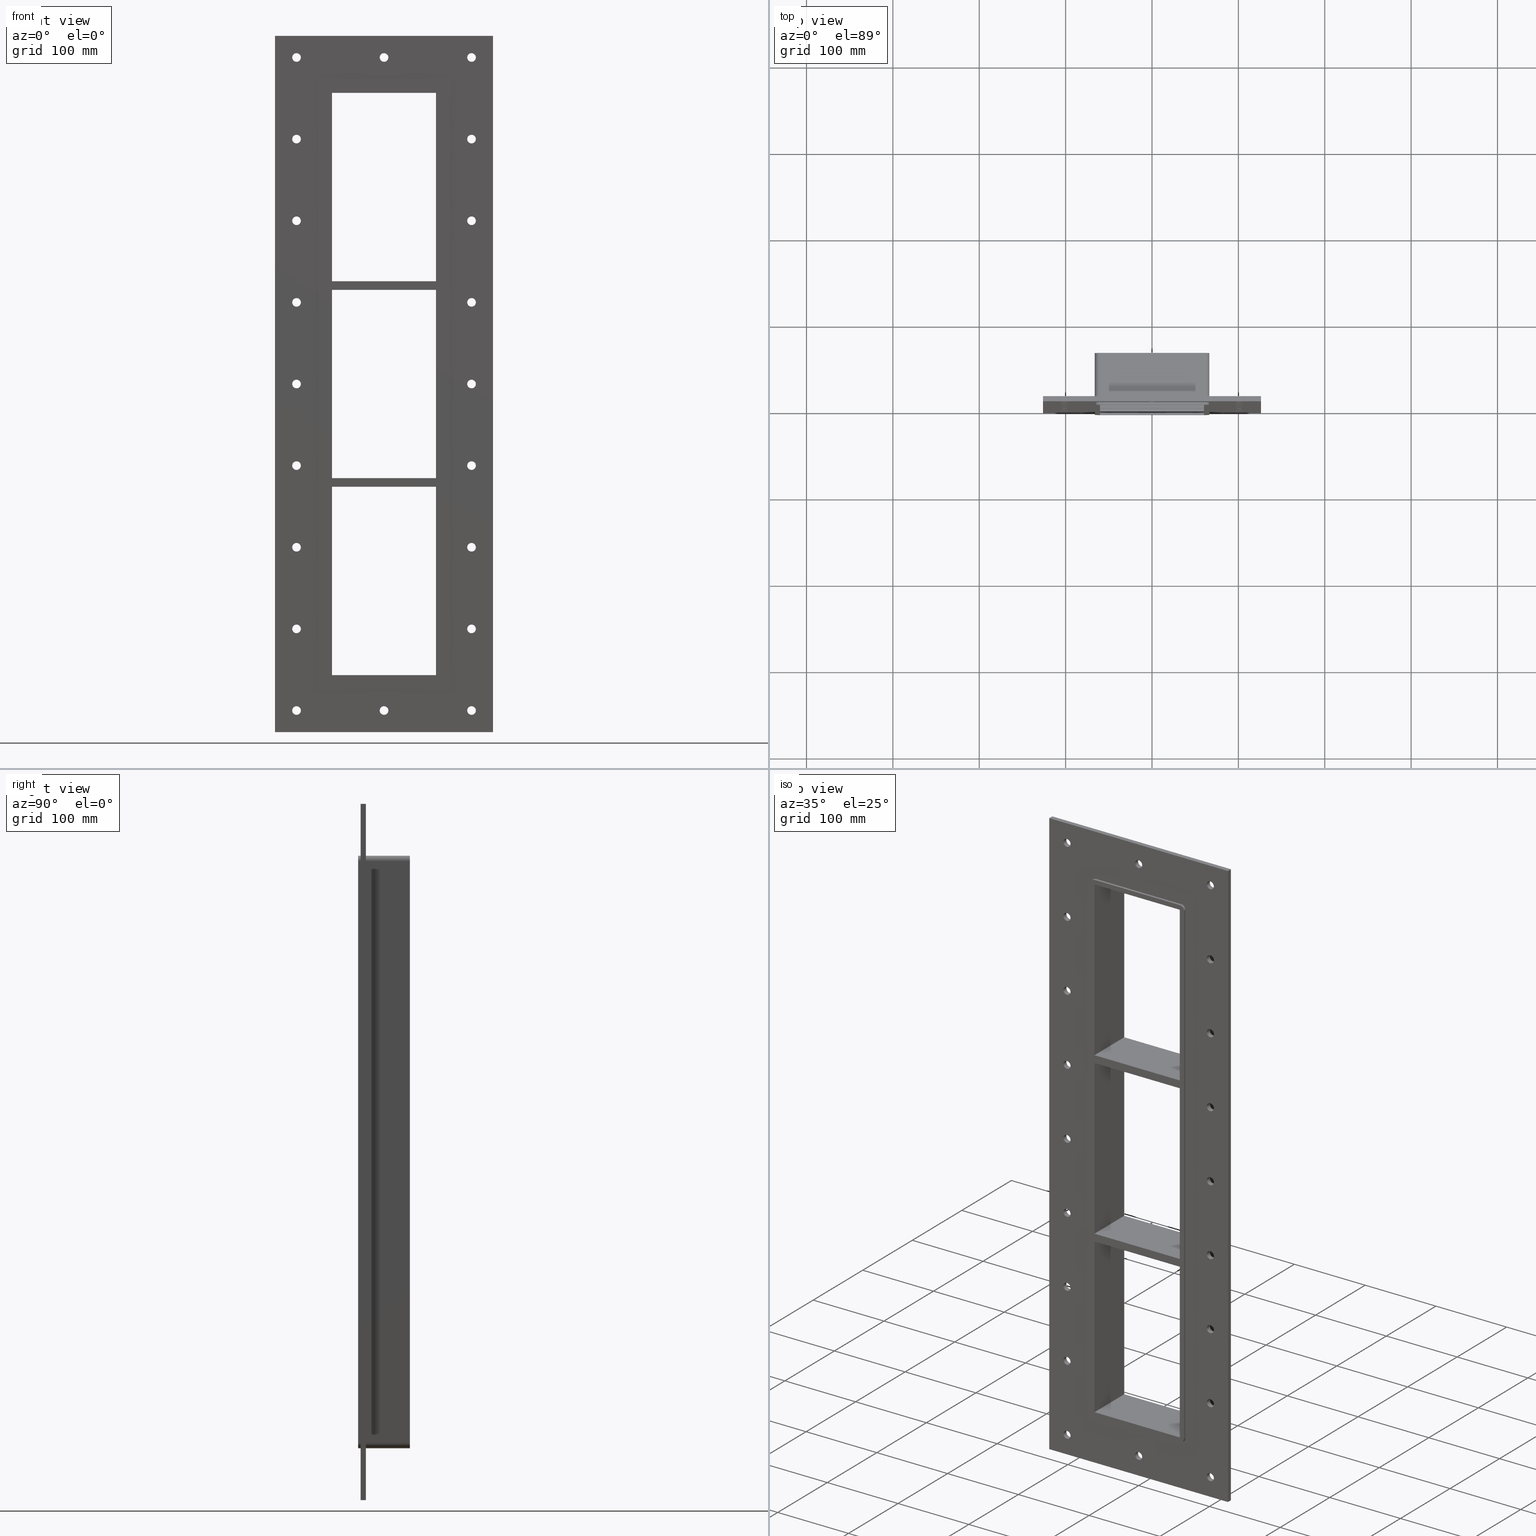
[diagram: canonical four-view strip — front | top / right | iso, engineering-drawing reading convention]
A machine part, canonical four-view strip (front | top / right | iso — engineering-drawing reading convention). The complete STEP part file that produces these views, byte-faithful:
ISO-10303-21;
HEADER;
/****************************************************************
 * Generated by software with PDElib inside                    *
 * PDElib Version v51a, created Wed 11/30/2011                  *
 * ITI Transcendata (http://www.transcendata.com/)              *
 ****************************************************************/
FILE_DESCRIPTION((''),'2;1');
FILE_NAME('N:\\Projects\\Ongoing_Projects\\12403 Transit Designer\\Product-data\\Product Data\\Transit designer Cad Generator\\CreatedFiles\\STEP\\G B EX6+6+6X1.stp','2014-12-01T13:02:52',(''),(''),'Autodesk Inventor 2013','Autodesk Inventor 2013','');
FILE_SCHEMA(('AUTOMOTIVE_DESIGN { 1 0 10303 214 1 1 1 1 }'));
ENDSEC;
DATA;
#5=APPLICATION_CONTEXT('automotive design');
#6=APPLICATION_PROTOCOL_DEFINITION('International Standard','automotive_design',2001,#5);
#7=PRODUCT_CONTEXT('',#5,'mechanical');
#8=PRODUCT('G B Ex','G B Ex',$,(#7));
#9=PRODUCT_RELATED_PRODUCT_CATEGORY('part',$,(#8));
#10=PRODUCT_DEFINITION_FORMATION('',$,#8);
#11=PRODUCT_DEFINITION_CONTEXT('part definition',#5,'design');
#12=PRODUCT_DEFINITION('',$,#10,#11);
#18=(NAMED_UNIT(*)PLANE_ANGLE_UNIT()SI_UNIT($,.RADIAN.));
#19=DIMENSIONAL_EXPONENTS(0.0,0.0,0.0,0.0,0.0,0.0,0.0);
#20=PLANE_ANGLE_MEASURE_WITH_UNIT(PLANE_ANGLE_MEASURE(0.0174532925),#18);
#24=(CONVERSION_BASED_UNIT('DEGREE',#20)NAMED_UNIT(#19)PLANE_ANGLE_UNIT());
#28=(NAMED_UNIT(*)SI_UNIT($,.STERADIAN.)SOLID_ANGLE_UNIT());
#32=(LENGTH_UNIT()NAMED_UNIT(*)SI_UNIT(.MILLI.,.METRE.));
#34=UNCERTAINTY_MEASURE_WITH_UNIT(LENGTH_MEASURE(0.01),#32,'DISTANCE_ACCURACY_VALUE','');
#36=(GEOMETRIC_REPRESENTATION_CONTEXT(3)GLOBAL_UNCERTAINTY_ASSIGNED_CONTEXT((#34))GLOBAL_UNIT_ASSIGNED_CONTEXT((#24,#28,#32))REPRESENTATION_CONTEXT('None','None'));
#37=AXIS2_PLACEMENT_3D('',#38,#39,#40);
#38=CARTESIAN_POINT('',(0.0,0.0,0.0));
#39=DIRECTION('',(0.0,0.0,1.0));
#40=DIRECTION('',(1.0,0.0,0.0));
#41=SHAPE_REPRESENTATION('',(#37),#36);
#42=PRODUCT_DEFINITION_SHAPE('','',#12);
#43=SHAPE_DEFINITION_REPRESENTATION(#42,#41);
#49=(NAMED_UNIT(*)PLANE_ANGLE_UNIT()SI_UNIT($,.RADIAN.));
#50=DIMENSIONAL_EXPONENTS(0.0,0.0,0.0,0.0,0.0,0.0,0.0);
#51=PLANE_ANGLE_MEASURE_WITH_UNIT(PLANE_ANGLE_MEASURE(0.0174532925),#49);
#55=(CONVERSION_BASED_UNIT('DEGREE',#51)NAMED_UNIT(#50)PLANE_ANGLE_UNIT());
#59=(NAMED_UNIT(*)SI_UNIT($,.STERADIAN.)SOLID_ANGLE_UNIT());
#63=(LENGTH_UNIT()NAMED_UNIT(*)SI_UNIT(.MILLI.,.METRE.));
#65=UNCERTAINTY_MEASURE_WITH_UNIT(LENGTH_MEASURE(0.000001),#63,'DISTANCE_ACCURACY_VALUE','');
#67=(GEOMETRIC_REPRESENTATION_CONTEXT(3)GLOBAL_UNCERTAINTY_ASSIGNED_CONTEXT((#65))GLOBAL_UNIT_ASSIGNED_CONTEXT((#55,#59,#63))REPRESENTATION_CONTEXT('','3D'));
#68=CARTESIAN_POINT('',(-101.25000000000006,846.75394891314215,-378.00000000000006));
#69=DIRECTION('',(0.0,-1.0,0.0));
#70=DIRECTION('',(1.0,0.0,0.0));
#71=AXIS2_PLACEMENT_3D('',#68,#69,#70);
#72=CYLINDRICAL_SURFACE('',#71,5.0);
#73=CARTESIAN_POINT('',(-106.25000000000006,5.999999999999943,-378.00000000000006));
#74=VERTEX_POINT('',#73);
#75=CARTESIAN_POINT('',(-101.25000000000006,5.999999999999943,-378.00000000000006));
#76=DIRECTION('',(0.0,-1.0,0.0));
#77=DIRECTION('',(1.0,0.0,0.0));
#78=AXIS2_PLACEMENT_3D('',#75,#76,#77);
#79=CIRCLE('',#78,5.0);
#80=EDGE_CURVE('',#74,#74,#79,.T.);
#81=ORIENTED_EDGE('',*,*,#80,.F.);
#82=EDGE_LOOP('',(#81));
#83=FACE_OUTER_BOUND('',#82,.T.);
#84=CARTESIAN_POINT('',(-96.250000000000057,0.0,-378.00000000000006));
#85=VERTEX_POINT('',#84);
#86=CARTESIAN_POINT('',(-101.25000000000006,0.0,-378.00000000000006));
#87=DIRECTION('',(0.0,1.0,0.0));
#88=DIRECTION('',(1.0,0.0,0.0));
#89=AXIS2_PLACEMENT_3D('',#86,#87,#88);
#90=CIRCLE('',#89,5.0);
#91=EDGE_CURVE('',#85,#85,#90,.T.);
#92=ORIENTED_EDGE('',*,*,#91,.F.);
#93=EDGE_LOOP('',(#92));
#94=FACE_BOUND('',#93,.T.);
#95=ADVANCED_FACE('',(#83,#94),#72,.F.);
#96=CARTESIAN_POINT('',(101.34999999999997,846.75394891314215,-283.5));
#97=DIRECTION('',(0.0,-1.0,0.0));
#98=DIRECTION('',(1.0,0.0,0.0));
#99=AXIS2_PLACEMENT_3D('',#96,#97,#98);
#100=CYLINDRICAL_SURFACE('',#99,5.0);
#101=CARTESIAN_POINT('',(96.349999999999966,5.999999999999943,-283.5));
#102=VERTEX_POINT('',#101);
#103=CARTESIAN_POINT('',(101.34999999999997,5.999999999999943,-283.5));
#104=DIRECTION('',(0.0,-1.0,0.0));
#105=DIRECTION('',(1.0,0.0,0.0));
#106=AXIS2_PLACEMENT_3D('',#103,#104,#105);
#107=CIRCLE('',#106,5.0);
#108=EDGE_CURVE('',#102,#102,#107,.T.);
#109=ORIENTED_EDGE('',*,*,#108,.F.);
#110=EDGE_LOOP('',(#109));
#111=FACE_OUTER_BOUND('',#110,.T.);
#112=CARTESIAN_POINT('',(106.34999999999997,0.0,-283.5));
#113=VERTEX_POINT('',#112);
#114=CARTESIAN_POINT('',(101.34999999999997,0.0,-283.5));
#115=DIRECTION('',(0.0,1.0,0.0));
#116=DIRECTION('',(1.0,0.0,0.0));
#117=AXIS2_PLACEMENT_3D('',#114,#115,#116);
#118=CIRCLE('',#117,5.0);
#119=EDGE_CURVE('',#113,#113,#118,.T.);
#120=ORIENTED_EDGE('',*,*,#119,.F.);
#121=EDGE_LOOP('',(#120));
#122=FACE_BOUND('',#121,.T.);
#123=ADVANCED_FACE('',(#111,#122),#100,.F.);
#124=CARTESIAN_POINT('',(-101.25000000000006,846.75394891314215,-283.5));
#125=DIRECTION('',(0.0,-1.0,0.0));
#126=DIRECTION('',(1.0,0.0,0.0));
#127=AXIS2_PLACEMENT_3D('',#124,#125,#126);
#128=CYLINDRICAL_SURFACE('',#127,5.0);
#129=CARTESIAN_POINT('',(-106.25000000000006,5.999999999999943,-283.5));
#130=VERTEX_POINT('',#129);
#131=CARTESIAN_POINT('',(-101.25000000000006,5.999999999999943,-283.5));
#132=DIRECTION('',(0.0,-1.0,0.0));
#133=DIRECTION('',(1.0,0.0,0.0));
#134=AXIS2_PLACEMENT_3D('',#131,#132,#133);
#135=CIRCLE('',#134,5.0);
#136=EDGE_CURVE('',#130,#130,#135,.T.);
#137=ORIENTED_EDGE('',*,*,#136,.F.);
#138=EDGE_LOOP('',(#137));
#139=FACE_OUTER_BOUND('',#138,.T.);
#140=CARTESIAN_POINT('',(-96.250000000000057,0.0,-283.5));
#141=VERTEX_POINT('',#140);
#142=CARTESIAN_POINT('',(-101.25000000000006,0.0,-283.5));
#143=DIRECTION('',(0.0,1.0,0.0));
#144=DIRECTION('',(1.0,0.0,0.0));
#145=AXIS2_PLACEMENT_3D('',#142,#143,#144);
#146=CIRCLE('',#145,5.0);
#147=EDGE_CURVE('',#141,#141,#146,.T.);
#148=ORIENTED_EDGE('',*,*,#147,.F.);
#149=EDGE_LOOP('',(#148));
#150=FACE_BOUND('',#149,.T.);
#151=ADVANCED_FACE('',(#139,#150),#128,.F.);
#152=CARTESIAN_POINT('',(101.34999999999997,846.75394891314215,-189.0));
#153=DIRECTION('',(0.0,-1.0,0.0));
#154=DIRECTION('',(1.0,0.0,0.0));
#155=AXIS2_PLACEMENT_3D('',#152,#153,#154);
#156=CYLINDRICAL_SURFACE('',#155,5.0);
#157=CARTESIAN_POINT('',(96.349999999999966,5.999999999999943,-189.0));
#158=VERTEX_POINT('',#157);
#159=CARTESIAN_POINT('',(101.34999999999997,5.999999999999943,-189.0));
#160=DIRECTION('',(0.0,-1.0,0.0));
#161=DIRECTION('',(1.0,0.0,0.0));
#162=AXIS2_PLACEMENT_3D('',#159,#160,#161);
#163=CIRCLE('',#162,5.0);
#164=EDGE_CURVE('',#158,#158,#163,.T.);
#165=ORIENTED_EDGE('',*,*,#164,.F.);
#166=EDGE_LOOP('',(#165));
#167=FACE_OUTER_BOUND('',#166,.T.);
#168=CARTESIAN_POINT('',(106.34999999999997,0.0,-189.0));
#169=VERTEX_POINT('',#168);
#170=CARTESIAN_POINT('',(101.34999999999997,0.0,-189.0));
#171=DIRECTION('',(0.0,1.0,0.0));
#172=DIRECTION('',(1.0,0.0,0.0));
#173=AXIS2_PLACEMENT_3D('',#170,#171,#172);
#174=CIRCLE('',#173,5.0);
#175=EDGE_CURVE('',#169,#169,#174,.T.);
#176=ORIENTED_EDGE('',*,*,#175,.F.);
#177=EDGE_LOOP('',(#176));
#178=FACE_BOUND('',#177,.T.);
#179=ADVANCED_FACE('',(#167,#178),#156,.F.);
#180=CARTESIAN_POINT('',(-101.25000000000006,846.75394891314215,-189.0));
#181=DIRECTION('',(0.0,-1.0,0.0));
#182=DIRECTION('',(1.0,0.0,0.0));
#183=AXIS2_PLACEMENT_3D('',#180,#181,#182);
#184=CYLINDRICAL_SURFACE('',#183,5.0);
#185=CARTESIAN_POINT('',(-106.25000000000006,5.999999999999943,-189.0));
#186=VERTEX_POINT('',#185);
#187=CARTESIAN_POINT('',(-101.25000000000006,5.999999999999943,-189.0));
#188=DIRECTION('',(0.0,-1.0,0.0));
#189=DIRECTION('',(1.0,0.0,0.0));
#190=AXIS2_PLACEMENT_3D('',#187,#188,#189);
#191=CIRCLE('',#190,5.0);
#192=EDGE_CURVE('',#186,#186,#191,.T.);
#193=ORIENTED_EDGE('',*,*,#192,.F.);
#194=EDGE_LOOP('',(#193));
#195=FACE_OUTER_BOUND('',#194,.T.);
#196=CARTESIAN_POINT('',(-96.250000000000057,0.0,-189.0));
#197=VERTEX_POINT('',#196);
#198=CARTESIAN_POINT('',(-101.25000000000006,0.0,-189.0));
#199=DIRECTION('',(0.0,1.0,0.0));
#200=DIRECTION('',(1.0,0.0,0.0));
#201=AXIS2_PLACEMENT_3D('',#198,#199,#200);
#202=CIRCLE('',#201,5.0);
#203=EDGE_CURVE('',#197,#197,#202,.T.);
#204=ORIENTED_EDGE('',*,*,#203,.F.);
#205=EDGE_LOOP('',(#204));
#206=FACE_BOUND('',#205,.T.);
#207=ADVANCED_FACE('',(#195,#206),#184,.F.);
#208=CARTESIAN_POINT('',(101.34999999999997,846.75394891314215,-94.500000000000014));
#209=DIRECTION('',(0.0,-1.0,0.0));
#210=DIRECTION('',(1.0,0.0,0.0));
#211=AXIS2_PLACEMENT_3D('',#208,#209,#210);
#212=CYLINDRICAL_SURFACE('',#211,5.0);
#213=CARTESIAN_POINT('',(96.349999999999966,5.999999999999943,-94.500000000000014));
#214=VERTEX_POINT('',#213);
#215=CARTESIAN_POINT('',(101.34999999999997,5.999999999999943,-94.500000000000014));
#216=DIRECTION('',(0.0,-1.0,0.0));
#217=DIRECTION('',(1.0,0.0,0.0));
#218=AXIS2_PLACEMENT_3D('',#215,#216,#217);
#219=CIRCLE('',#218,5.0);
#220=EDGE_CURVE('',#214,#214,#219,.T.);
#221=ORIENTED_EDGE('',*,*,#220,.F.);
#222=EDGE_LOOP('',(#221));
#223=FACE_OUTER_BOUND('',#222,.T.);
#224=CARTESIAN_POINT('',(106.34999999999997,0.0,-94.500000000000014));
#225=VERTEX_POINT('',#224);
#226=CARTESIAN_POINT('',(101.34999999999997,0.0,-94.500000000000014));
#227=DIRECTION('',(0.0,1.0,0.0));
#228=DIRECTION('',(1.0,0.0,0.0));
#229=AXIS2_PLACEMENT_3D('',#226,#227,#228);
#230=CIRCLE('',#229,5.0);
#231=EDGE_CURVE('',#225,#225,#230,.T.);
#232=ORIENTED_EDGE('',*,*,#231,.F.);
#233=EDGE_LOOP('',(#232));
#234=FACE_BOUND('',#233,.T.);
#235=ADVANCED_FACE('',(#223,#234),#212,.F.);
#236=CARTESIAN_POINT('',(-101.25000000000006,846.75394891314215,-94.500000000000014));
#237=DIRECTION('',(0.0,-1.0,0.0));
#238=DIRECTION('',(1.0,0.0,0.0));
#239=AXIS2_PLACEMENT_3D('',#236,#237,#238);
#240=CYLINDRICAL_SURFACE('',#239,5.0);
#241=CARTESIAN_POINT('',(-106.25000000000006,5.999999999999943,-94.500000000000014));
#242=VERTEX_POINT('',#241);
#243=CARTESIAN_POINT('',(-101.25000000000006,5.999999999999943,-94.500000000000014));
#244=DIRECTION('',(0.0,-1.0,0.0));
#245=DIRECTION('',(1.0,0.0,0.0));
#246=AXIS2_PLACEMENT_3D('',#243,#244,#245);
#247=CIRCLE('',#246,5.0);
#248=EDGE_CURVE('',#242,#242,#247,.T.);
#249=ORIENTED_EDGE('',*,*,#248,.F.);
#250=EDGE_LOOP('',(#249));
#251=FACE_OUTER_BOUND('',#250,.T.);
#252=CARTESIAN_POINT('',(-96.250000000000057,0.0,-94.500000000000014));
#253=VERTEX_POINT('',#252);
#254=CARTESIAN_POINT('',(-101.25000000000006,0.0,-94.500000000000014));
#255=DIRECTION('',(0.0,1.0,0.0));
#256=DIRECTION('',(1.0,0.0,0.0));
#257=AXIS2_PLACEMENT_3D('',#254,#255,#256);
#258=CIRCLE('',#257,5.0);
#259=EDGE_CURVE('',#253,#253,#258,.T.);
#260=ORIENTED_EDGE('',*,*,#259,.F.);
#261=EDGE_LOOP('',(#260));
#262=FACE_BOUND('',#261,.T.);
#263=ADVANCED_FACE('',(#251,#262),#240,.F.);
#264=CARTESIAN_POINT('',(101.34999999999997,846.75394891314215,1.776357E-014));
#265=DIRECTION('',(0.0,-1.0,0.0));
#266=DIRECTION('',(1.0,0.0,0.0));
#267=AXIS2_PLACEMENT_3D('',#264,#265,#266);
#268=CYLINDRICAL_SURFACE('',#267,5.0);
#269=CARTESIAN_POINT('',(96.349999999999966,5.999999999999943,1.776357E-014));
#270=VERTEX_POINT('',#269);
#271=CARTESIAN_POINT('',(101.34999999999997,5.999999999999943,1.776357E-014));
#272=DIRECTION('',(0.0,-1.0,0.0));
#273=DIRECTION('',(1.0,0.0,0.0));
#274=AXIS2_PLACEMENT_3D('',#271,#272,#273);
#275=CIRCLE('',#274,5.0);
#276=EDGE_CURVE('',#270,#270,#275,.T.);
#277=ORIENTED_EDGE('',*,*,#276,.F.);
#278=EDGE_LOOP('',(#277));
#279=FACE_OUTER_BOUND('',#278,.T.);
#280=CARTESIAN_POINT('',(106.34999999999997,0.0,1.776357E-014));
#281=VERTEX_POINT('',#280);
#282=CARTESIAN_POINT('',(101.34999999999997,0.0,1.776357E-014));
#283=DIRECTION('',(0.0,1.0,0.0));
#284=DIRECTION('',(1.0,0.0,0.0));
#285=AXIS2_PLACEMENT_3D('',#282,#283,#284);
#286=CIRCLE('',#285,5.0);
#287=EDGE_CURVE('',#281,#281,#286,.T.);
#288=ORIENTED_EDGE('',*,*,#287,.F.);
#289=EDGE_LOOP('',(#288));
#290=FACE_BOUND('',#289,.T.);
#291=ADVANCED_FACE('',(#279,#290),#268,.F.);
#292=CARTESIAN_POINT('',(-101.25000000000006,846.75394891314215,1.776357E-014));
#293=DIRECTION('',(0.0,-1.0,0.0));
#294=DIRECTION('',(1.0,0.0,0.0));
#295=AXIS2_PLACEMENT_3D('',#292,#293,#294);
#296=CYLINDRICAL_SURFACE('',#295,5.0);
#297=CARTESIAN_POINT('',(-106.25000000000006,5.999999999999943,1.776357E-014));
#298=VERTEX_POINT('',#297);
#299=CARTESIAN_POINT('',(-101.25000000000006,5.999999999999943,1.776357E-014));
#300=DIRECTION('',(0.0,-1.0,0.0));
#301=DIRECTION('',(1.0,0.0,0.0));
#302=AXIS2_PLACEMENT_3D('',#299,#300,#301);
#303=CIRCLE('',#302,5.0);
#304=EDGE_CURVE('',#298,#298,#303,.T.);
#305=ORIENTED_EDGE('',*,*,#304,.F.);
#306=EDGE_LOOP('',(#305));
#307=FACE_OUTER_BOUND('',#306,.T.);
#308=CARTESIAN_POINT('',(-96.250000000000057,0.0,1.776357E-014));
#309=VERTEX_POINT('',#308);
#310=CARTESIAN_POINT('',(-101.25000000000006,0.0,1.776357E-014));
#311=DIRECTION('',(0.0,1.0,0.0));
#312=DIRECTION('',(1.0,0.0,0.0));
#313=AXIS2_PLACEMENT_3D('',#310,#311,#312);
#314=CIRCLE('',#313,5.0);
#315=EDGE_CURVE('',#309,#309,#314,.T.);
#316=ORIENTED_EDGE('',*,*,#315,.F.);
#317=EDGE_LOOP('',(#316));
#318=FACE_BOUND('',#317,.T.);
#319=ADVANCED_FACE('',(#307,#318),#296,.F.);
#320=CARTESIAN_POINT('',(101.34999999999997,846.75394891314215,94.500000000000043));
#321=DIRECTION('',(0.0,-1.0,0.0));
#322=DIRECTION('',(1.0,0.0,0.0));
#323=AXIS2_PLACEMENT_3D('',#320,#321,#322);
#324=CYLINDRICAL_SURFACE('',#323,5.0);
#325=CARTESIAN_POINT('',(96.349999999999966,5.999999999999943,94.500000000000043));
#326=VERTEX_POINT('',#325);
#327=CARTESIAN_POINT('',(101.34999999999997,5.999999999999943,94.500000000000043));
#328=DIRECTION('',(0.0,-1.0,0.0));
#329=DIRECTION('',(1.0,0.0,0.0));
#330=AXIS2_PLACEMENT_3D('',#327,#328,#329);
#331=CIRCLE('',#330,5.0);
#332=EDGE_CURVE('',#326,#326,#331,.T.);
#333=ORIENTED_EDGE('',*,*,#332,.F.);
#334=EDGE_LOOP('',(#333));
#335=FACE_OUTER_BOUND('',#334,.T.);
#336=CARTESIAN_POINT('',(106.34999999999997,0.0,94.500000000000043));
#337=VERTEX_POINT('',#336);
#338=CARTESIAN_POINT('',(101.34999999999997,0.0,94.500000000000043));
#339=DIRECTION('',(0.0,1.0,0.0));
#340=DIRECTION('',(1.0,0.0,0.0));
#341=AXIS2_PLACEMENT_3D('',#338,#339,#340);
#342=CIRCLE('',#341,5.0);
#343=EDGE_CURVE('',#337,#337,#342,.T.);
#344=ORIENTED_EDGE('',*,*,#343,.F.);
#345=EDGE_LOOP('',(#344));
#346=FACE_BOUND('',#345,.T.);
#347=ADVANCED_FACE('',(#335,#346),#324,.F.);
#348=CARTESIAN_POINT('',(-101.25000000000006,846.75394891314215,94.500000000000043));
#349=DIRECTION('',(0.0,-1.0,0.0));
#350=DIRECTION('',(1.0,0.0,0.0));
#351=AXIS2_PLACEMENT_3D('',#348,#349,#350);
#352=CYLINDRICAL_SURFACE('',#351,5.0);
#353=CARTESIAN_POINT('',(-106.25000000000006,5.999999999999943,94.500000000000043));
#354=VERTEX_POINT('',#353);
#355=CARTESIAN_POINT('',(-101.25000000000006,5.999999999999943,94.500000000000043));
#356=DIRECTION('',(0.0,-1.0,0.0));
#357=DIRECTION('',(1.0,0.0,0.0));
#358=AXIS2_PLACEMENT_3D('',#355,#356,#357);
#359=CIRCLE('',#358,5.0);
#360=EDGE_CURVE('',#354,#354,#359,.T.);
#361=ORIENTED_EDGE('',*,*,#360,.F.);
#362=EDGE_LOOP('',(#361));
#363=FACE_OUTER_BOUND('',#362,.T.);
#364=CARTESIAN_POINT('',(-96.250000000000057,0.0,94.500000000000043));
#365=VERTEX_POINT('',#364);
#366=CARTESIAN_POINT('',(-101.25000000000006,0.0,94.500000000000043));
#367=DIRECTION('',(0.0,1.0,0.0));
#368=DIRECTION('',(1.0,0.0,0.0));
#369=AXIS2_PLACEMENT_3D('',#366,#367,#368);
#370=CIRCLE('',#369,5.0);
#371=EDGE_CURVE('',#365,#365,#370,.T.);
#372=ORIENTED_EDGE('',*,*,#371,.F.);
#373=EDGE_LOOP('',(#372));
#374=FACE_BOUND('',#373,.T.);
#375=ADVANCED_FACE('',(#363,#374),#352,.F.);
#376=CARTESIAN_POINT('',(101.34999999999997,846.75394891314215,189.0));
#377=DIRECTION('',(0.0,-1.0,0.0));
#378=DIRECTION('',(1.0,0.0,0.0));
#379=AXIS2_PLACEMENT_3D('',#376,#377,#378);
#380=CYLINDRICAL_SURFACE('',#379,5.0);
#381=CARTESIAN_POINT('',(96.349999999999966,5.999999999999943,189.0));
#382=VERTEX_POINT('',#381);
#383=CARTESIAN_POINT('',(101.34999999999997,5.999999999999943,189.0));
#384=DIRECTION('',(0.0,-1.0,0.0));
#385=DIRECTION('',(1.0,0.0,0.0));
#386=AXIS2_PLACEMENT_3D('',#383,#384,#385);
#387=CIRCLE('',#386,5.0);
#388=EDGE_CURVE('',#382,#382,#387,.T.);
#389=ORIENTED_EDGE('',*,*,#388,.F.);
#390=EDGE_LOOP('',(#389));
#391=FACE_OUTER_BOUND('',#390,.T.);
#392=CARTESIAN_POINT('',(106.34999999999997,0.0,189.0));
#393=VERTEX_POINT('',#392);
#394=CARTESIAN_POINT('',(101.34999999999997,0.0,189.0));
#395=DIRECTION('',(0.0,1.0,0.0));
#396=DIRECTION('',(1.0,0.0,0.0));
#397=AXIS2_PLACEMENT_3D('',#394,#395,#396);
#398=CIRCLE('',#397,5.0);
#399=EDGE_CURVE('',#393,#393,#398,.T.);
#400=ORIENTED_EDGE('',*,*,#399,.F.);
#401=EDGE_LOOP('',(#400));
#402=FACE_BOUND('',#401,.T.);
#403=ADVANCED_FACE('',(#391,#402),#380,.F.);
#404=CARTESIAN_POINT('',(-101.25000000000006,846.75394891314215,189.0));
#405=DIRECTION('',(0.0,-1.0,0.0));
#406=DIRECTION('',(1.0,0.0,0.0));
#407=AXIS2_PLACEMENT_3D('',#404,#405,#406);
#408=CYLINDRICAL_SURFACE('',#407,5.0);
#409=CARTESIAN_POINT('',(-106.25000000000006,5.999999999999943,189.0));
#410=VERTEX_POINT('',#409);
#411=CARTESIAN_POINT('',(-101.25000000000006,5.999999999999943,189.0));
#412=DIRECTION('',(0.0,-1.0,0.0));
#413=DIRECTION('',(1.0,0.0,0.0));
#414=AXIS2_PLACEMENT_3D('',#411,#412,#413);
#415=CIRCLE('',#414,5.0);
#416=EDGE_CURVE('',#410,#410,#415,.T.);
#417=ORIENTED_EDGE('',*,*,#416,.F.);
#418=EDGE_LOOP('',(#417));
#419=FACE_OUTER_BOUND('',#418,.T.);
#420=CARTESIAN_POINT('',(-96.250000000000057,0.0,189.0));
#421=VERTEX_POINT('',#420);
#422=CARTESIAN_POINT('',(-101.25000000000006,0.0,189.0));
#423=DIRECTION('',(0.0,1.0,0.0));
#424=DIRECTION('',(1.0,0.0,0.0));
#425=AXIS2_PLACEMENT_3D('',#422,#423,#424);
#426=CIRCLE('',#425,5.0);
#427=EDGE_CURVE('',#421,#421,#426,.T.);
#428=ORIENTED_EDGE('',*,*,#427,.F.);
#429=EDGE_LOOP('',(#428));
#430=FACE_BOUND('',#429,.T.);
#431=ADVANCED_FACE('',(#419,#430),#408,.F.);
#432=CARTESIAN_POINT('',(101.34999999999997,846.75394891314215,283.5));
#433=DIRECTION('',(0.0,-1.0,0.0));
#434=DIRECTION('',(1.0,0.0,0.0));
#435=AXIS2_PLACEMENT_3D('',#432,#433,#434);
#436=CYLINDRICAL_SURFACE('',#435,5.0);
#437=CARTESIAN_POINT('',(96.349999999999966,5.999999999999943,283.5));
#438=VERTEX_POINT('',#437);
#439=CARTESIAN_POINT('',(101.34999999999997,5.999999999999943,283.5));
#440=DIRECTION('',(0.0,-1.0,0.0));
#441=DIRECTION('',(1.0,0.0,0.0));
#442=AXIS2_PLACEMENT_3D('',#439,#440,#441);
#443=CIRCLE('',#442,5.0);
#444=EDGE_CURVE('',#438,#438,#443,.T.);
#445=ORIENTED_EDGE('',*,*,#444,.F.);
#446=EDGE_LOOP('',(#445));
#447=FACE_OUTER_BOUND('',#446,.T.);
#448=CARTESIAN_POINT('',(106.34999999999997,0.0,283.5));
#449=VERTEX_POINT('',#448);
#450=CARTESIAN_POINT('',(101.34999999999997,0.0,283.5));
#451=DIRECTION('',(0.0,1.0,0.0));
#452=DIRECTION('',(1.0,0.0,0.0));
#453=AXIS2_PLACEMENT_3D('',#450,#451,#452);
#454=CIRCLE('',#453,5.0);
#455=EDGE_CURVE('',#449,#449,#454,.T.);
#456=ORIENTED_EDGE('',*,*,#455,.F.);
#457=EDGE_LOOP('',(#456));
#458=FACE_BOUND('',#457,.T.);
#459=ADVANCED_FACE('',(#447,#458),#436,.F.);
#460=CARTESIAN_POINT('',(-101.25000000000006,846.75394891314215,283.5));
#461=DIRECTION('',(0.0,-1.0,0.0));
#462=DIRECTION('',(1.0,0.0,0.0));
#463=AXIS2_PLACEMENT_3D('',#460,#461,#462);
#464=CYLINDRICAL_SURFACE('',#463,5.0);
#465=CARTESIAN_POINT('',(-106.25000000000006,5.999999999999943,283.5));
#466=VERTEX_POINT('',#465);
#467=CARTESIAN_POINT('',(-101.25000000000006,5.999999999999943,283.5));
#468=DIRECTION('',(0.0,-1.0,0.0));
#469=DIRECTION('',(1.0,0.0,0.0));
#470=AXIS2_PLACEMENT_3D('',#467,#468,#469);
#471=CIRCLE('',#470,5.0);
#472=EDGE_CURVE('',#466,#466,#471,.T.);
#473=ORIENTED_EDGE('',*,*,#472,.F.);
#474=EDGE_LOOP('',(#473));
#475=FACE_OUTER_BOUND('',#474,.T.);
#476=CARTESIAN_POINT('',(-96.250000000000057,0.0,283.5));
#477=VERTEX_POINT('',#476);
#478=CARTESIAN_POINT('',(-101.25000000000006,0.0,283.5));
#479=DIRECTION('',(0.0,1.0,0.0));
#480=DIRECTION('',(1.0,0.0,0.0));
#481=AXIS2_PLACEMENT_3D('',#478,#479,#480);
#482=CIRCLE('',#481,5.0);
#483=EDGE_CURVE('',#477,#477,#482,.T.);
#484=ORIENTED_EDGE('',*,*,#483,.F.);
#485=EDGE_LOOP('',(#484));
#486=FACE_BOUND('',#485,.T.);
#487=ADVANCED_FACE('',(#475,#486),#464,.F.);
#488=CARTESIAN_POINT('',(0.049999999999955,846.75394891314215,378.00000000000006));
#489=DIRECTION('',(0.0,-1.0,0.0));
#490=DIRECTION('',(1.0,0.0,0.0));
#491=AXIS2_PLACEMENT_3D('',#488,#489,#490);
#492=CYLINDRICAL_SURFACE('',#491,5.0);
#493=CARTESIAN_POINT('',(-4.950000000000046,5.999999999999943,378.00000000000006));
#494=VERTEX_POINT('',#493);
#495=CARTESIAN_POINT('',(0.049999999999955,5.999999999999943,378.00000000000006));
#496=DIRECTION('',(0.0,-1.0,0.0));
#497=DIRECTION('',(1.0,0.0,0.0));
#498=AXIS2_PLACEMENT_3D('',#495,#496,#497);
#499=CIRCLE('',#498,5.0);
#500=EDGE_CURVE('',#494,#494,#499,.T.);
#501=ORIENTED_EDGE('',*,*,#500,.F.);
#502=EDGE_LOOP('',(#501));
#503=FACE_OUTER_BOUND('',#502,.T.);
#504=CARTESIAN_POINT('',(5.049999999999955,0.0,378.00000000000006));
#505=VERTEX_POINT('',#504);
#506=CARTESIAN_POINT('',(0.049999999999955,0.0,378.00000000000006));
#507=DIRECTION('',(0.0,1.0,0.0));
#508=DIRECTION('',(1.0,0.0,0.0));
#509=AXIS2_PLACEMENT_3D('',#506,#507,#508);
#510=CIRCLE('',#509,5.0);
#511=EDGE_CURVE('',#505,#505,#510,.T.);
#512=ORIENTED_EDGE('',*,*,#511,.F.);
#513=EDGE_LOOP('',(#512));
#514=FACE_BOUND('',#513,.T.);
#515=ADVANCED_FACE('',(#503,#514),#492,.F.);
#516=CARTESIAN_POINT('',(0.049999999999955,846.75394891314215,-378.00000000000006));
#517=DIRECTION('',(0.0,-1.0,0.0));
#518=DIRECTION('',(1.0,0.0,0.0));
#519=AXIS2_PLACEMENT_3D('',#516,#517,#518);
#520=CYLINDRICAL_SURFACE('',#519,5.0);
#521=CARTESIAN_POINT('',(-4.950000000000046,5.999999999999943,-378.00000000000006));
#522=VERTEX_POINT('',#521);
#523=CARTESIAN_POINT('',(0.049999999999955,5.999999999999943,-378.00000000000006));
#524=DIRECTION('',(0.0,-1.0,0.0));
#525=DIRECTION('',(1.0,0.0,0.0));
#526=AXIS2_PLACEMENT_3D('',#523,#524,#525);
#527=CIRCLE('',#526,5.0);
#528=EDGE_CURVE('',#522,#522,#527,.T.);
#529=ORIENTED_EDGE('',*,*,#528,.F.);
#530=EDGE_LOOP('',(#529));
#531=FACE_OUTER_BOUND('',#530,.T.);
#532=CARTESIAN_POINT('',(5.049999999999955,0.0,-378.00000000000006));
#533=VERTEX_POINT('',#532);
#534=CARTESIAN_POINT('',(0.049999999999955,0.0,-378.00000000000006));
#535=DIRECTION('',(0.0,1.0,0.0));
#536=DIRECTION('',(1.0,0.0,0.0));
#537=AXIS2_PLACEMENT_3D('',#534,#535,#536);
#538=CIRCLE('',#537,5.0);
#539=EDGE_CURVE('',#533,#533,#538,.T.);
#540=ORIENTED_EDGE('',*,*,#539,.F.);
#541=EDGE_LOOP('',(#540));
#542=FACE_BOUND('',#541,.T.);
#543=ADVANCED_FACE('',(#531,#542),#520,.F.);
#544=CARTESIAN_POINT('',(101.34999999999997,846.75394891314215,-378.00000000000006));
#545=DIRECTION('',(0.0,-1.0,0.0));
#546=DIRECTION('',(1.0,0.0,0.0));
#547=AXIS2_PLACEMENT_3D('',#544,#545,#546);
#548=CYLINDRICAL_SURFACE('',#547,5.0);
#549=CARTESIAN_POINT('',(96.349999999999966,5.999999999999943,-378.00000000000006));
#550=VERTEX_POINT('',#549);
#551=CARTESIAN_POINT('',(101.34999999999997,5.999999999999943,-378.00000000000006));
#552=DIRECTION('',(0.0,-1.0,0.0));
#553=DIRECTION('',(1.0,0.0,0.0));
#554=AXIS2_PLACEMENT_3D('',#551,#552,#553);
#555=CIRCLE('',#554,5.0);
#556=EDGE_CURVE('',#550,#550,#555,.T.);
#557=ORIENTED_EDGE('',*,*,#556,.F.);
#558=EDGE_LOOP('',(#557));
#559=FACE_OUTER_BOUND('',#558,.T.);
#560=CARTESIAN_POINT('',(106.34999999999997,0.0,-378.00000000000006));
#561=VERTEX_POINT('',#560);
#562=CARTESIAN_POINT('',(101.34999999999997,0.0,-378.00000000000006));
#563=DIRECTION('',(0.0,1.0,0.0));
#564=DIRECTION('',(1.0,0.0,0.0));
#565=AXIS2_PLACEMENT_3D('',#562,#563,#564);
#566=CIRCLE('',#565,5.0);
#567=EDGE_CURVE('',#561,#561,#566,.T.);
#568=ORIENTED_EDGE('',*,*,#567,.F.);
#569=EDGE_LOOP('',(#568));
#570=FACE_BOUND('',#569,.T.);
#571=ADVANCED_FACE('',(#559,#570),#548,.F.);
#572=CARTESIAN_POINT('',(-101.25000000000006,846.75394891314215,378.00000000000006));
#573=DIRECTION('',(0.0,-1.0,0.0));
#574=DIRECTION('',(1.0,0.0,0.0));
#575=AXIS2_PLACEMENT_3D('',#572,#573,#574);
#576=CYLINDRICAL_SURFACE('',#575,5.0);
#577=CARTESIAN_POINT('',(-106.25000000000006,5.999999999999943,378.00000000000006));
#578=VERTEX_POINT('',#577);
#579=CARTESIAN_POINT('',(-101.25000000000006,5.999999999999943,378.00000000000006));
#580=DIRECTION('',(0.0,-1.0,0.0));
#581=DIRECTION('',(1.0,0.0,0.0));
#582=AXIS2_PLACEMENT_3D('',#579,#580,#581);
#583=CIRCLE('',#582,5.0);
#584=EDGE_CURVE('',#578,#578,#583,.T.);
#585=ORIENTED_EDGE('',*,*,#584,.F.);
#586=EDGE_LOOP('',(#585));
#587=FACE_OUTER_BOUND('',#586,.T.);
#588=CARTESIAN_POINT('',(-96.250000000000057,0.0,378.00000000000006));
#589=VERTEX_POINT('',#588);
#590=CARTESIAN_POINT('',(-101.25000000000006,0.0,378.00000000000006));
#591=DIRECTION('',(0.0,1.0,0.0));
#592=DIRECTION('',(1.0,0.0,0.0));
#593=AXIS2_PLACEMENT_3D('',#590,#591,#592);
#594=CIRCLE('',#593,5.0);
#595=EDGE_CURVE('',#589,#589,#594,.T.);
#596=ORIENTED_EDGE('',*,*,#595,.F.);
#597=EDGE_LOOP('',(#596));
#598=FACE_BOUND('',#597,.T.);
#599=ADVANCED_FACE('',(#587,#598),#576,.F.);
#600=CARTESIAN_POINT('',(101.34999999999997,846.75394891314215,378.00000000000006));
#601=DIRECTION('',(0.0,-1.0,0.0));
#602=DIRECTION('',(1.0,0.0,0.0));
#603=AXIS2_PLACEMENT_3D('',#600,#601,#602);
#604=CYLINDRICAL_SURFACE('',#603,5.0);
#605=CARTESIAN_POINT('',(96.349999999999966,5.999999999999943,378.00000000000006));
#606=VERTEX_POINT('',#605);
#607=CARTESIAN_POINT('',(101.34999999999997,5.999999999999943,378.00000000000006));
#608=DIRECTION('',(0.0,-1.0,0.0));
#609=DIRECTION('',(1.0,0.0,0.0));
#610=AXIS2_PLACEMENT_3D('',#607,#608,#609);
#611=CIRCLE('',#610,5.0);
#612=EDGE_CURVE('',#606,#606,#611,.T.);
#613=ORIENTED_EDGE('',*,*,#612,.F.);
#614=EDGE_LOOP('',(#613));
#615=FACE_OUTER_BOUND('',#614,.T.);
#616=CARTESIAN_POINT('',(106.34999999999997,0.0,378.00000000000006));
#617=VERTEX_POINT('',#616);
#618=CARTESIAN_POINT('',(101.34999999999997,0.0,378.00000000000006));
#619=DIRECTION('',(0.0,1.0,0.0));
#620=DIRECTION('',(1.0,0.0,0.0));
#621=AXIS2_PLACEMENT_3D('',#618,#619,#620);
#622=CIRCLE('',#621,5.0);
#623=EDGE_CURVE('',#617,#617,#622,.T.);
#624=ORIENTED_EDGE('',*,*,#623,.F.);
#625=EDGE_LOOP('',(#624));
#626=FACE_BOUND('',#625,.T.);
#627=ADVANCED_FACE('',(#615,#626),#604,.F.);
#628=CARTESIAN_POINT('',(60.249999999996362,-3.0,108.99999999998904));
#629=DIRECTION('',(0.0,0.0,-1.0));
#630=DIRECTION('',(-1.0,0.0,0.0));
#631=AXIS2_PLACEMENT_3D('',#628,#629,#630);
#632=PLANE('',#631);
#633=CARTESIAN_POINT('',(60.249999999996362,-3.0,108.99999999998904));
#634=VERTEX_POINT('',#633);
#635=CARTESIAN_POINT('',(-60.249999999999673,-3.0,108.99999999998886));
#636=VERTEX_POINT('',#635);
#637=CARTESIAN_POINT('',(60.249999999996362,-3.0,108.99999999998904));
#638=DIRECTION('',(-1.0,0.0,0.0));
#639=VECTOR('',#638,120.49999999999602);
#640=LINE('',#637,#639);
#641=EDGE_CURVE('',#634,#636,#640,.T.);
#642=ORIENTED_EDGE('',*,*,#641,.T.);
#643=CARTESIAN_POINT('',(-60.249999999999673,57.0,108.99999999998886));
#644=VERTEX_POINT('',#643);
#645=CARTESIAN_POINT('',(-60.249999999999993,57.000000000000007,108.99999999998884));
#646=DIRECTION('',(0.0,-1.0,0.0));
#647=VECTOR('',#646,60.000000000000007);
#648=LINE('',#645,#647);
#649=EDGE_CURVE('',#644,#636,#648,.T.);
#650=ORIENTED_EDGE('',*,*,#649,.F.);
#651=CARTESIAN_POINT('',(60.249999999996355,57.0,108.99999999998904));
#652=VERTEX_POINT('',#651);
#653=CARTESIAN_POINT('',(60.249999999996362,57.0,108.99999999998904));
#654=DIRECTION('',(-1.0,0.0,0.0));
#655=VECTOR('',#654,120.49999999999602);
#656=LINE('',#653,#655);
#657=EDGE_CURVE('',#652,#644,#656,.T.);
#658=ORIENTED_EDGE('',*,*,#657,.F.);
#659=CARTESIAN_POINT('',(60.250000000000014,-3.0,108.99999999998904));
#660=DIRECTION('',(0.0,1.0,0.0));
#661=VECTOR('',#660,60.000000000000007);
#662=LINE('',#659,#661);
#663=EDGE_CURVE('',#634,#652,#662,.T.);
#664=ORIENTED_EDGE('',*,*,#663,.F.);
#665=EDGE_LOOP('',(#642,#650,#658,#664));
#666=FACE_OUTER_BOUND('',#665,.T.);
#667=ADVANCED_FACE('',(#666),#632,.T.);
#668=CARTESIAN_POINT('',(-60.249999999999673,-3.0,118.99999999999994));
#669=DIRECTION('',(0.0,0.0,1.0));
#670=DIRECTION('',(1.0,0.0,0.0));
#671=AXIS2_PLACEMENT_3D('',#668,#669,#670);
#672=PLANE('',#671);
#673=CARTESIAN_POINT('',(-60.249999999999673,-3.0,118.99999999999994));
#674=VERTEX_POINT('',#673);
#675=CARTESIAN_POINT('',(60.249999999999915,-3.0,118.99999999999994));
#676=VERTEX_POINT('',#675);
#677=CARTESIAN_POINT('',(-60.249999999999673,-3.0,118.99999999999994));
#678=DIRECTION('',(1.0,0.0,0.0));
#679=VECTOR('',#678,120.49999999999957);
#680=LINE('',#677,#679);
#681=EDGE_CURVE('',#674,#676,#680,.T.);
#682=ORIENTED_EDGE('',*,*,#681,.T.);
#683=CARTESIAN_POINT('',(60.249999999999908,57.0,118.99999999999994));
#684=VERTEX_POINT('',#683);
#685=CARTESIAN_POINT('',(60.250000000000014,57.000000000000007,118.99999999999993));
#686=DIRECTION('',(0.0,-1.0,0.0));
#687=VECTOR('',#686,60.000000000000007);
#688=LINE('',#685,#687);
#689=EDGE_CURVE('',#684,#676,#688,.T.);
#690=ORIENTED_EDGE('',*,*,#689,.F.);
#691=CARTESIAN_POINT('',(-60.249999999999673,57.0,118.99999999999994));
#692=VERTEX_POINT('',#691);
#693=CARTESIAN_POINT('',(-60.249999999999673,57.0,118.99999999999994));
#694=DIRECTION('',(1.0,0.0,0.0));
#695=VECTOR('',#694,120.49999999999957);
#696=LINE('',#693,#695);
#697=EDGE_CURVE('',#692,#684,#696,.T.);
#698=ORIENTED_EDGE('',*,*,#697,.F.);
#699=CARTESIAN_POINT('',(-60.249999999999993,-3.0,118.99999999999993));
#700=DIRECTION('',(0.0,1.0,0.0));
#701=VECTOR('',#700,60.000000000000007);
#702=LINE('',#699,#701);
#703=EDGE_CURVE('',#674,#692,#702,.T.);
#704=ORIENTED_EDGE('',*,*,#703,.F.);
#705=EDGE_LOOP('',(#682,#690,#698,#704));
#706=FACE_OUTER_BOUND('',#705,.T.);
#707=ADVANCED_FACE('',(#706),#672,.T.);
#708=CARTESIAN_POINT('',(-60.249999999999993,0.0,-337.0));
#709=DIRECTION('',(-1.0,0.0,0.0));
#710=DIRECTION('',(0.0,0.0,1.0));
#711=AXIS2_PLACEMENT_3D('',#708,#709,#710);
#712=PLANE('',#711);
#713=ORIENTED_EDGE('',*,*,#703,.T.);
#714=CARTESIAN_POINT('',(-60.249999999999993,57.0,337.0));
#715=VERTEX_POINT('',#714);
#716=CARTESIAN_POINT('',(-60.249999999999993,57.0,337.00000000000006));
#717=DIRECTION('',(0.0,0.0,-1.0));
#718=VECTOR('',#717,218.00000000000011);
#719=LINE('',#716,#718);
#720=EDGE_CURVE('',#715,#692,#719,.T.);
#721=ORIENTED_EDGE('',*,*,#720,.F.);
#722=CARTESIAN_POINT('',(-60.249999999999993,-3.0,337.0));
#723=VERTEX_POINT('',#722);
#724=CARTESIAN_POINT('',(-60.249999999999993,-3.0,337.0));
#725=DIRECTION('',(0.0,1.0,0.0));
#726=VECTOR('',#725,60.0);
#727=LINE('',#724,#726);
#728=EDGE_CURVE('',#723,#715,#727,.T.);
#729=ORIENTED_EDGE('',*,*,#728,.F.);
#730=CARTESIAN_POINT('',(-60.249999999999993,-3.0,118.99999999999994));
#731=DIRECTION('',(0.0,0.0,1.0));
#732=VECTOR('',#731,218.00000000000011);
#733=LINE('',#730,#732);
#734=EDGE_CURVE('',#674,#723,#733,.T.);
#735=ORIENTED_EDGE('',*,*,#734,.F.);
#736=EDGE_LOOP('',(#713,#721,#729,#735));
#737=FACE_OUTER_BOUND('',#736,.T.);
#738=ADVANCED_FACE('',(#737),#712,.F.);
#739=CARTESIAN_POINT('',(60.250000000000014,0.0,337.0));
#740=DIRECTION('',(1.0,0.0,0.0));
#741=DIRECTION('',(0.0,0.0,-1.0));
#742=AXIS2_PLACEMENT_3D('',#739,#740,#741);
#743=PLANE('',#742);
#744=ORIENTED_EDGE('',*,*,#663,.T.);
#745=CARTESIAN_POINT('',(60.249999999999908,57.0,-109.00000000000006));
#746=VERTEX_POINT('',#745);
#747=CARTESIAN_POINT('',(60.250000000000014,57.0,-109.00000000000006));
#748=DIRECTION('',(0.0,0.0,1.0));
#749=VECTOR('',#748,217.99999999998909);
#750=LINE('',#747,#749);
#751=EDGE_CURVE('',#746,#652,#750,.T.);
#752=ORIENTED_EDGE('',*,*,#751,.F.);
#753=CARTESIAN_POINT('',(60.249999999999915,-3.0,-109.00000000000006));
#754=VERTEX_POINT('',#753);
#755=CARTESIAN_POINT('',(60.250000000000014,57.000000000000007,-109.00000000000006));
#756=DIRECTION('',(0.0,-1.0,0.0));
#757=VECTOR('',#756,60.000000000000007);
#758=LINE('',#755,#757);
#759=EDGE_CURVE('',#746,#754,#758,.T.);
#760=ORIENTED_EDGE('',*,*,#759,.T.);
#761=CARTESIAN_POINT('',(60.250000000000014,-3.0,108.99999999998903));
#762=DIRECTION('',(0.0,0.0,-1.0));
#763=VECTOR('',#762,217.99999999998909);
#764=LINE('',#761,#763);
#765=EDGE_CURVE('',#634,#754,#764,.T.);
#766=ORIENTED_EDGE('',*,*,#765,.F.);
#767=EDGE_LOOP('',(#744,#752,#760,#766));
#768=FACE_OUTER_BOUND('',#767,.T.);
#769=ADVANCED_FACE('',(#768),#743,.F.);
#770=CARTESIAN_POINT('',(60.250000000000014,0.0,337.0));
#771=DIRECTION('',(1.0,0.0,0.0));
#772=DIRECTION('',(0.0,0.0,-1.0));
#773=AXIS2_PLACEMENT_3D('',#770,#771,#772);
#774=PLANE('',#773);
#775=ORIENTED_EDGE('',*,*,#689,.T.);
#776=CARTESIAN_POINT('',(60.250000000000014,-3.0,337.0));
#777=VERTEX_POINT('',#776);
#778=CARTESIAN_POINT('',(60.250000000000014,-3.0,337.0));
#779=DIRECTION('',(0.0,0.0,-1.0));
#780=VECTOR('',#779,218.00000000000006);
#781=LINE('',#778,#780);
#782=EDGE_CURVE('',#777,#676,#781,.T.);
#783=ORIENTED_EDGE('',*,*,#782,.F.);
#784=CARTESIAN_POINT('',(60.250000000000014,57.0,337.0));
#785=VERTEX_POINT('',#784);
#786=CARTESIAN_POINT('',(60.250000000000014,-3.0,337.0));
#787=DIRECTION('',(0.0,1.0,0.0));
#788=VECTOR('',#787,60.0);
#789=LINE('',#786,#788);
#790=EDGE_CURVE('',#777,#785,#789,.T.);
#791=ORIENTED_EDGE('',*,*,#790,.T.);
#792=CARTESIAN_POINT('',(60.250000000000014,57.0,118.99999999999994));
#793=DIRECTION('',(0.0,0.0,1.0));
#794=VECTOR('',#793,218.00000000000006);
#795=LINE('',#792,#794);
#796=EDGE_CURVE('',#684,#785,#795,.T.);
#797=ORIENTED_EDGE('',*,*,#796,.F.);
#798=EDGE_LOOP('',(#775,#783,#791,#797));
#799=FACE_OUTER_BOUND('',#798,.T.);
#800=ADVANCED_FACE('',(#799),#774,.F.);
#801=CARTESIAN_POINT('',(60.249999999996362,-3.0,-119.00000000001097));
#802=DIRECTION('',(0.0,0.0,-1.0));
#803=DIRECTION('',(-1.0,0.0,0.0));
#804=AXIS2_PLACEMENT_3D('',#801,#802,#803);
#805=PLANE('',#804);
#806=CARTESIAN_POINT('',(60.249999999996362,-3.0,-119.00000000001097));
#807=VERTEX_POINT('',#806);
#808=CARTESIAN_POINT('',(-60.249999999999673,-3.0,-119.00000000001114));
#809=VERTEX_POINT('',#808);
#810=CARTESIAN_POINT('',(60.249999999996362,-3.0,-119.00000000001097));
#811=DIRECTION('',(-1.0,0.0,0.0));
#812=VECTOR('',#811,120.49999999999602);
#813=LINE('',#810,#812);
#814=EDGE_CURVE('',#807,#809,#813,.T.);
#815=ORIENTED_EDGE('',*,*,#814,.T.);
#816=CARTESIAN_POINT('',(-60.249999999999673,57.0,-119.00000000001114));
#817=VERTEX_POINT('',#816);
#818=CARTESIAN_POINT('',(-60.249999999999993,57.000000000000007,-119.00000000001116));
#819=DIRECTION('',(0.0,-1.0,0.0));
#820=VECTOR('',#819,60.000000000000007);
#821=LINE('',#818,#820);
#822=EDGE_CURVE('',#817,#809,#821,.T.);
#823=ORIENTED_EDGE('',*,*,#822,.F.);
#824=CARTESIAN_POINT('',(60.249999999996355,57.0,-119.00000000001097));
#825=VERTEX_POINT('',#824);
#826=CARTESIAN_POINT('',(60.249999999996362,57.0,-119.00000000001097));
#827=DIRECTION('',(-1.0,0.0,0.0));
#828=VECTOR('',#827,120.49999999999602);
#829=LINE('',#826,#828);
#830=EDGE_CURVE('',#825,#817,#829,.T.);
#831=ORIENTED_EDGE('',*,*,#830,.F.);
#832=CARTESIAN_POINT('',(60.250000000000014,-3.0,-119.00000000001098));
#833=DIRECTION('',(0.0,1.0,0.0));
#834=VECTOR('',#833,60.000000000000007);
#835=LINE('',#832,#834);
#836=EDGE_CURVE('',#807,#825,#835,.T.);
#837=ORIENTED_EDGE('',*,*,#836,.F.);
#838=EDGE_LOOP('',(#815,#823,#831,#837));
#839=FACE_OUTER_BOUND('',#838,.T.);
#840=ADVANCED_FACE('',(#839),#805,.T.);
#841=CARTESIAN_POINT('',(-60.249999999999673,-3.0,-109.00000000000006));
#842=DIRECTION('',(0.0,0.0,1.0));
#843=DIRECTION('',(1.0,0.0,0.0));
#844=AXIS2_PLACEMENT_3D('',#841,#842,#843);
#845=PLANE('',#844);
#846=CARTESIAN_POINT('',(-60.249999999999673,-3.0,-109.00000000000006));
#847=VERTEX_POINT('',#846);
#848=CARTESIAN_POINT('',(-60.249999999999673,-3.0,-109.00000000000006));
#849=DIRECTION('',(1.0,0.0,0.0));
#850=VECTOR('',#849,120.49999999999957);
#851=LINE('',#848,#850);
#852=EDGE_CURVE('',#847,#754,#851,.T.);
#853=ORIENTED_EDGE('',*,*,#852,.T.);
#854=ORIENTED_EDGE('',*,*,#759,.F.);
#855=CARTESIAN_POINT('',(-60.249999999999673,57.0,-109.00000000000006));
#856=VERTEX_POINT('',#855);
#857=CARTESIAN_POINT('',(-60.249999999999673,57.0,-109.00000000000006));
#858=DIRECTION('',(1.0,0.0,0.0));
#859=VECTOR('',#858,120.49999999999957);
#860=LINE('',#857,#859);
#861=EDGE_CURVE('',#856,#746,#860,.T.);
#862=ORIENTED_EDGE('',*,*,#861,.F.);
#863=CARTESIAN_POINT('',(-60.249999999999993,-3.0,-109.00000000000006));
#864=DIRECTION('',(0.0,1.0,0.0));
#865=VECTOR('',#864,60.000000000000007);
#866=LINE('',#863,#865);
#867=EDGE_CURVE('',#847,#856,#866,.T.);
#868=ORIENTED_EDGE('',*,*,#867,.F.);
#869=EDGE_LOOP('',(#853,#854,#862,#868));
#870=FACE_OUTER_BOUND('',#869,.T.);
#871=ADVANCED_FACE('',(#870),#845,.T.);
#872=CARTESIAN_POINT('',(-60.249999999999993,0.0,-337.0));
#873=DIRECTION('',(-1.0,0.0,0.0));
#874=DIRECTION('',(0.0,0.0,1.0));
#875=AXIS2_PLACEMENT_3D('',#872,#873,#874);
#876=PLANE('',#875);
#877=ORIENTED_EDGE('',*,*,#649,.T.);
#878=CARTESIAN_POINT('',(-60.249999999999993,-3.0,-109.00000000000004));
#879=DIRECTION('',(0.0,0.0,1.0));
#880=VECTOR('',#879,217.99999999998892);
#881=LINE('',#878,#880);
#882=EDGE_CURVE('',#847,#636,#881,.T.);
#883=ORIENTED_EDGE('',*,*,#882,.F.);
#884=ORIENTED_EDGE('',*,*,#867,.T.);
#885=CARTESIAN_POINT('',(-60.249999999999993,57.0,108.99999999998886));
#886=DIRECTION('',(0.0,0.0,-1.0));
#887=VECTOR('',#886,217.99999999998892);
#888=LINE('',#885,#887);
#889=EDGE_CURVE('',#644,#856,#888,.T.);
#890=ORIENTED_EDGE('',*,*,#889,.F.);
#891=EDGE_LOOP('',(#877,#883,#884,#890));
#892=FACE_OUTER_BOUND('',#891,.T.);
#893=ADVANCED_FACE('',(#892),#876,.F.);
#894=CARTESIAN_POINT('',(60.250000000000014,0.0,337.0));
#895=DIRECTION('',(1.0,0.0,0.0));
#896=DIRECTION('',(0.0,0.0,-1.0));
#897=AXIS2_PLACEMENT_3D('',#894,#895,#896);
#898=PLANE('',#897);
#899=ORIENTED_EDGE('',*,*,#836,.T.);
#900=CARTESIAN_POINT('',(60.250000000000014,57.0,-337.0));
#901=VERTEX_POINT('',#900);
#902=CARTESIAN_POINT('',(60.250000000000014,57.0,-337.00000000000006));
#903=DIRECTION('',(0.0,0.0,1.0));
#904=VECTOR('',#903,217.99999999998909);
#905=LINE('',#902,#904);
#906=EDGE_CURVE('',#901,#825,#905,.T.);
#907=ORIENTED_EDGE('',*,*,#906,.F.);
#908=CARTESIAN_POINT('',(60.250000000000014,-3.0,-337.0));
#909=VERTEX_POINT('',#908);
#910=CARTESIAN_POINT('',(60.250000000000014,56.999999999999993,-337.0));
#911=DIRECTION('',(0.0,-1.0,0.0));
#912=VECTOR('',#911,59.999999999999993);
#913=LINE('',#910,#912);
#914=EDGE_CURVE('',#901,#909,#913,.T.);
#915=ORIENTED_EDGE('',*,*,#914,.T.);
#916=CARTESIAN_POINT('',(60.250000000000014,-3.0,-119.00000000001097));
#917=DIRECTION('',(0.0,0.0,-1.0));
#918=VECTOR('',#917,217.99999999998909);
#919=LINE('',#916,#918);
#920=EDGE_CURVE('',#807,#909,#919,.T.);
#921=ORIENTED_EDGE('',*,*,#920,.F.);
#922=EDGE_LOOP('',(#899,#907,#915,#921));
#923=FACE_OUTER_BOUND('',#922,.T.);
#924=ADVANCED_FACE('',(#923),#898,.F.);
#925=CARTESIAN_POINT('',(-8.055279E-015,6.000000000000001,0.0));
#926=DIRECTION('',(0.0,1.0,0.0));
#927=DIRECTION('',(0.0,0.0,1.0));
#928=AXIS2_PLACEMENT_3D('',#925,#926,#927);
#929=PLANE('',#928);
#930=CARTESIAN_POINT('',(-126.25000000000001,6.000000000000001,403.00000000000006));
#931=VERTEX_POINT('',#930);
#932=CARTESIAN_POINT('',(126.24999999999999,6.000000000000001,403.00000000000006));
#933=VERTEX_POINT('',#932);
#934=CARTESIAN_POINT('',(-126.25000000000001,6.000000000000001,403.00000000000006));
#935=DIRECTION('',(1.0,0.0,0.0));
#936=VECTOR('',#935,252.5);
#937=LINE('',#934,#936);
#938=EDGE_CURVE('',#931,#933,#937,.T.);
#939=ORIENTED_EDGE('',*,*,#938,.T.);
#940=CARTESIAN_POINT('',(126.24999999999999,6.000000000000001,-403.00000000000006));
#941=VERTEX_POINT('',#940);
#942=CARTESIAN_POINT('',(126.25,6.000000000000001,403.00000000000006));
#943=DIRECTION('',(0.0,0.0,-1.0));
#944=VECTOR('',#943,806.00000000000011);
#945=LINE('',#942,#944);
#946=EDGE_CURVE('',#933,#941,#945,.T.);
#947=ORIENTED_EDGE('',*,*,#946,.T.);
#948=CARTESIAN_POINT('',(-126.25000000000001,6.000000000000001,-403.00000000000006));
#949=VERTEX_POINT('',#948);
#950=CARTESIAN_POINT('',(126.25,6.000000000000001,-403.00000000000006));
#951=DIRECTION('',(-1.0,0.0,0.0));
#952=VECTOR('',#951,252.5);
#953=LINE('',#950,#952);
#954=EDGE_CURVE('',#941,#949,#953,.T.);
#955=ORIENTED_EDGE('',*,*,#954,.T.);
#956=CARTESIAN_POINT('',(-126.25000000000001,6.000000000000001,-403.00000000000006));
#957=DIRECTION('',(0.0,0.0,1.0));
#958=VECTOR('',#957,806.00000000000011);
#959=LINE('',#956,#958);
#960=EDGE_CURVE('',#949,#931,#959,.T.);
#961=ORIENTED_EDGE('',*,*,#960,.T.);
#962=EDGE_LOOP('',(#939,#947,#955,#961));
#963=FACE_OUTER_BOUND('',#962,.T.);
#964=ORIENTED_EDGE('',*,*,#80,.T.);
#965=EDGE_LOOP('',(#964));
#966=FACE_BOUND('',#965,.T.);
#967=ORIENTED_EDGE('',*,*,#108,.T.);
#968=EDGE_LOOP('',(#967));
#969=FACE_BOUND('',#968,.T.);
#970=ORIENTED_EDGE('',*,*,#136,.T.);
#971=EDGE_LOOP('',(#970));
#972=FACE_BOUND('',#971,.T.);
#973=ORIENTED_EDGE('',*,*,#164,.T.);
#974=EDGE_LOOP('',(#973));
#975=FACE_BOUND('',#974,.T.);
#976=ORIENTED_EDGE('',*,*,#192,.T.);
#977=EDGE_LOOP('',(#976));
#978=FACE_BOUND('',#977,.T.);
#979=ORIENTED_EDGE('',*,*,#220,.T.);
#980=EDGE_LOOP('',(#979));
#981=FACE_BOUND('',#980,.T.);
#982=ORIENTED_EDGE('',*,*,#248,.T.);
#983=EDGE_LOOP('',(#982));
#984=FACE_BOUND('',#983,.T.);
#985=ORIENTED_EDGE('',*,*,#276,.T.);
#986=EDGE_LOOP('',(#985));
#987=FACE_BOUND('',#986,.T.);
#988=ORIENTED_EDGE('',*,*,#304,.T.);
#989=EDGE_LOOP('',(#988));
#990=FACE_BOUND('',#989,.T.);
#991=ORIENTED_EDGE('',*,*,#332,.T.);
#992=EDGE_LOOP('',(#991));
#993=FACE_BOUND('',#992,.T.);
#994=ORIENTED_EDGE('',*,*,#360,.T.);
#995=EDGE_LOOP('',(#994));
#996=FACE_BOUND('',#995,.T.);
#997=ORIENTED_EDGE('',*,*,#388,.T.);
#998=EDGE_LOOP('',(#997));
#999=FACE_BOUND('',#998,.T.);
#1000=ORIENTED_EDGE('',*,*,#416,.T.);
#1001=EDGE_LOOP('',(#1000));
#1002=FACE_BOUND('',#1001,.T.);
#1003=ORIENTED_EDGE('',*,*,#444,.T.);
#1004=EDGE_LOOP('',(#1003));
#1005=FACE_BOUND('',#1004,.T.);
#1006=ORIENTED_EDGE('',*,*,#472,.T.);
#1007=EDGE_LOOP('',(#1006));
#1008=FACE_BOUND('',#1007,.T.);
#1009=ORIENTED_EDGE('',*,*,#500,.T.);
#1010=EDGE_LOOP('',(#1009));
#1011=FACE_BOUND('',#1010,.T.);
#1012=ORIENTED_EDGE('',*,*,#528,.T.);
#1013=EDGE_LOOP('',(#1012));
#1014=FACE_BOUND('',#1013,.T.);
#1015=ORIENTED_EDGE('',*,*,#556,.T.);
#1016=EDGE_LOOP('',(#1015));
#1017=FACE_BOUND('',#1016,.T.);
#1018=ORIENTED_EDGE('',*,*,#584,.T.);
#1019=EDGE_LOOP('',(#1018));
#1020=FACE_BOUND('',#1019,.T.);
#1021=ORIENTED_EDGE('',*,*,#612,.T.);
#1022=EDGE_LOOP('',(#1021));
#1023=FACE_BOUND('',#1022,.T.);
#1024=CARTESIAN_POINT('',(-60.25,6.000000000000001,-343.00000000000006));
#1025=VERTEX_POINT('',#1024);
#1026=CARTESIAN_POINT('',(-66.25,6.000000000000001,-337.0));
#1027=VERTEX_POINT('',#1026);
#1028=CARTESIAN_POINT('',(-60.25,6.000000000000001,-337.0));
#1029=DIRECTION('',(0.0,1.0,0.0));
#1030=DIRECTION('',(-0.707106781186551,0.0,-0.707106781186544));
#1031=AXIS2_PLACEMENT_3D('',#1028,#1029,#1030);
#1032=CIRCLE('',#1031,6.0);
#1033=EDGE_CURVE('',#1025,#1027,#1032,.T.);
#1034=ORIENTED_EDGE('',*,*,#1033,.F.);
#1035=CARTESIAN_POINT('',(60.25,6.000000000000001,-343.00000000000006));
#1036=VERTEX_POINT('',#1035);
#1037=CARTESIAN_POINT('',(60.25,6.000000000000001,-343.00000000000006));
#1038=DIRECTION('',(-1.0,0.0,0.0));
#1039=VECTOR('',#1038,120.5);
#1040=LINE('',#1037,#1039);
#1041=EDGE_CURVE('',#1036,#1025,#1040,.T.);
#1042=ORIENTED_EDGE('',*,*,#1041,.F.);
#1043=CARTESIAN_POINT('',(66.25,6.000000000000001,-337.0));
#1044=VERTEX_POINT('',#1043);
#1045=CARTESIAN_POINT('',(60.25,6.000000000000001,-337.0));
#1046=DIRECTION('',(0.0,1.0,0.0));
#1047=DIRECTION('',(0.707106781186551,0.0,-0.707106781186544));
#1048=AXIS2_PLACEMENT_3D('',#1045,#1046,#1047);
#1049=CIRCLE('',#1048,6.0);
#1050=EDGE_CURVE('',#1044,#1036,#1049,.T.);
#1051=ORIENTED_EDGE('',*,*,#1050,.F.);
#1052=CARTESIAN_POINT('',(66.25,6.000000000000001,337.0));
#1053=VERTEX_POINT('',#1052);
#1054=CARTESIAN_POINT('',(66.25,6.000000000000001,337.0));
#1055=DIRECTION('',(0.0,0.0,-1.0));
#1056=VECTOR('',#1055,674.00000000000011);
#1057=LINE('',#1054,#1056);
#1058=EDGE_CURVE('',#1053,#1044,#1057,.T.);
#1059=ORIENTED_EDGE('',*,*,#1058,.F.);
#1060=CARTESIAN_POINT('',(60.25,6.000000000000001,343.00000000000006));
#1061=VERTEX_POINT('',#1060);
#1062=CARTESIAN_POINT('',(60.25,6.000000000000001,337.0));
#1063=DIRECTION('',(0.0,1.0,0.0));
#1064=DIRECTION('',(0.707106781186551,0.0,0.707106781186544));
#1065=AXIS2_PLACEMENT_3D('',#1062,#1063,#1064);
#1066=CIRCLE('',#1065,6.0);
#1067=EDGE_CURVE('',#1061,#1053,#1066,.T.);
#1068=ORIENTED_EDGE('',*,*,#1067,.F.);
#1069=CARTESIAN_POINT('',(-60.25,6.000000000000001,343.00000000000006));
#1070=VERTEX_POINT('',#1069);
#1071=CARTESIAN_POINT('',(-60.250000000000007,6.000000000000001,343.00000000000006));
#1072=DIRECTION('',(1.0,0.0,0.0));
#1073=VECTOR('',#1072,120.5);
#1074=LINE('',#1071,#1073);
#1075=EDGE_CURVE('',#1070,#1061,#1074,.T.);
#1076=ORIENTED_EDGE('',*,*,#1075,.F.);
#1077=CARTESIAN_POINT('',(-66.25,6.000000000000001,337.0));
#1078=VERTEX_POINT('',#1077);
#1079=CARTESIAN_POINT('',(-60.25,6.000000000000001,337.0));
#1080=DIRECTION('',(0.0,1.0,0.0));
#1081=DIRECTION('',(-0.707106781186551,0.0,0.707106781186544));
#1082=AXIS2_PLACEMENT_3D('',#1079,#1080,#1081);
#1083=CIRCLE('',#1082,6.0);
#1084=EDGE_CURVE('',#1078,#1070,#1083,.T.);
#1085=ORIENTED_EDGE('',*,*,#1084,.F.);
#1086=CARTESIAN_POINT('',(-66.25,6.000000000000001,-337.0));
#1087=DIRECTION('',(0.0,0.0,1.0));
#1088=VECTOR('',#1087,674.00000000000011);
#1089=LINE('',#1086,#1088);
#1090=EDGE_CURVE('',#1027,#1078,#1089,.T.);
#1091=ORIENTED_EDGE('',*,*,#1090,.F.);
#1092=EDGE_LOOP('',(#1034,#1042,#1051,#1059,#1068,#1076,#1085,#1091));
#1093=FACE_BOUND('',#1092,.T.);
#1094=ADVANCED_FACE('',(#963,#966,#969,#972,#975,#978,#981,#984,#987,#990,#993,#996,#999,#1002,#1005,#1008,#1011,#1014,#1017,#1020,#1023,#1093),#929,.T.);
#1095=CARTESIAN_POINT('',(-8.055279E-015,0.0,0.0));
#1096=DIRECTION('',(0.0,1.0,0.0));
#1097=DIRECTION('',(0.0,0.0,1.0));
#1098=AXIS2_PLACEMENT_3D('',#1095,#1096,#1097);
#1099=PLANE('',#1098);
#1100=CARTESIAN_POINT('',(-126.25000000000001,0.0,403.00000000000006));
#1101=VERTEX_POINT('',#1100);
#1102=CARTESIAN_POINT('',(126.25,0.0,403.00000000000006));
#1103=VERTEX_POINT('',#1102);
#1104=CARTESIAN_POINT('',(-126.25000000000001,0.0,403.00000000000006));
#1105=DIRECTION('',(1.0,0.0,0.0));
#1106=VECTOR('',#1105,252.5);
#1107=LINE('',#1104,#1106);
#1108=EDGE_CURVE('',#1101,#1103,#1107,.T.);
#1109=ORIENTED_EDGE('',*,*,#1108,.F.);
#1110=CARTESIAN_POINT('',(-126.25000000000001,0.0,-403.00000000000006));
#1111=VERTEX_POINT('',#1110);
#1112=CARTESIAN_POINT('',(-126.25000000000001,0.0,-403.00000000000006));
#1113=DIRECTION('',(0.0,0.0,1.0));
#1114=VECTOR('',#1113,806.00000000000011);
#1115=LINE('',#1112,#1114);
#1116=EDGE_CURVE('',#1111,#1101,#1115,.T.);
#1117=ORIENTED_EDGE('',*,*,#1116,.F.);
#1118=CARTESIAN_POINT('',(126.25,0.0,-403.00000000000006));
#1119=VERTEX_POINT('',#1118);
#1120=CARTESIAN_POINT('',(126.25,0.0,-403.00000000000006));
#1121=DIRECTION('',(-1.0,0.0,0.0));
#1122=VECTOR('',#1121,252.5);
#1123=LINE('',#1120,#1122);
#1124=EDGE_CURVE('',#1119,#1111,#1123,.T.);
#1125=ORIENTED_EDGE('',*,*,#1124,.F.);
#1126=CARTESIAN_POINT('',(126.25,0.0,403.00000000000006));
#1127=DIRECTION('',(0.0,0.0,-1.0));
#1128=VECTOR('',#1127,806.00000000000011);
#1129=LINE('',#1126,#1128);
#1130=EDGE_CURVE('',#1103,#1119,#1129,.T.);
#1131=ORIENTED_EDGE('',*,*,#1130,.F.);
#1132=EDGE_LOOP('',(#1109,#1117,#1125,#1131));
#1133=FACE_OUTER_BOUND('',#1132,.T.);
#1134=ORIENTED_EDGE('',*,*,#91,.T.);
#1135=EDGE_LOOP('',(#1134));
#1136=FACE_BOUND('',#1135,.T.);
#1137=ORIENTED_EDGE('',*,*,#119,.T.);
#1138=EDGE_LOOP('',(#1137));
#1139=FACE_BOUND('',#1138,.T.);
#1140=ORIENTED_EDGE('',*,*,#147,.T.);
#1141=EDGE_LOOP('',(#1140));
#1142=FACE_BOUND('',#1141,.T.);
#1143=ORIENTED_EDGE('',*,*,#175,.T.);
#1144=EDGE_LOOP('',(#1143));
#1145=FACE_BOUND('',#1144,.T.);
#1146=ORIENTED_EDGE('',*,*,#203,.T.);
#1147=EDGE_LOOP('',(#1146));
#1148=FACE_BOUND('',#1147,.T.);
#1149=ORIENTED_EDGE('',*,*,#231,.T.);
#1150=EDGE_LOOP('',(#1149));
#1151=FACE_BOUND('',#1150,.T.);
#1152=ORIENTED_EDGE('',*,*,#259,.T.);
#1153=EDGE_LOOP('',(#1152));
#1154=FACE_BOUND('',#1153,.T.);
#1155=ORIENTED_EDGE('',*,*,#287,.T.);
#1156=EDGE_LOOP('',(#1155));
#1157=FACE_BOUND('',#1156,.T.);
#1158=ORIENTED_EDGE('',*,*,#315,.T.);
#1159=EDGE_LOOP('',(#1158));
#1160=FACE_BOUND('',#1159,.T.);
#1161=ORIENTED_EDGE('',*,*,#343,.T.);
#1162=EDGE_LOOP('',(#1161));
#1163=FACE_BOUND('',#1162,.T.);
#1164=ORIENTED_EDGE('',*,*,#371,.T.);
#1165=EDGE_LOOP('',(#1164));
#1166=FACE_BOUND('',#1165,.T.);
#1167=ORIENTED_EDGE('',*,*,#399,.T.);
#1168=EDGE_LOOP('',(#1167));
#1169=FACE_BOUND('',#1168,.T.);
#1170=ORIENTED_EDGE('',*,*,#427,.T.);
#1171=EDGE_LOOP('',(#1170));
#1172=FACE_BOUND('',#1171,.T.);
#1173=ORIENTED_EDGE('',*,*,#455,.T.);
#1174=EDGE_LOOP('',(#1173));
#1175=FACE_BOUND('',#1174,.T.);
#1176=ORIENTED_EDGE('',*,*,#483,.T.);
#1177=EDGE_LOOP('',(#1176));
#1178=FACE_BOUND('',#1177,.T.);
#1179=ORIENTED_EDGE('',*,*,#511,.T.);
#1180=EDGE_LOOP('',(#1179));
#1181=FACE_BOUND('',#1180,.T.);
#1182=ORIENTED_EDGE('',*,*,#539,.T.);
#1183=EDGE_LOOP('',(#1182));
#1184=FACE_BOUND('',#1183,.T.);
#1185=ORIENTED_EDGE('',*,*,#567,.T.);
#1186=EDGE_LOOP('',(#1185));
#1187=FACE_BOUND('',#1186,.T.);
#1188=ORIENTED_EDGE('',*,*,#595,.T.);
#1189=EDGE_LOOP('',(#1188));
#1190=FACE_BOUND('',#1189,.T.);
#1191=ORIENTED_EDGE('',*,*,#623,.T.);
#1192=EDGE_LOOP('',(#1191));
#1193=FACE_BOUND('',#1192,.T.);
#1194=CARTESIAN_POINT('',(-66.25,0.0,-337.0));
#1195=VERTEX_POINT('',#1194);
#1196=CARTESIAN_POINT('',(-60.25,0.0,-343.00000000000006));
#1197=VERTEX_POINT('',#1196);
#1198=CARTESIAN_POINT('',(-60.25,0.0,-337.0));
#1199=DIRECTION('',(0.0,-1.0,0.0));
#1200=DIRECTION('',(-0.707106781186551,0.0,-0.707106781186544));
#1201=AXIS2_PLACEMENT_3D('',#1198,#1199,#1200);
#1202=CIRCLE('',#1201,6.0);
#1203=EDGE_CURVE('',#1195,#1197,#1202,.T.);
#1204=ORIENTED_EDGE('',*,*,#1203,.F.);
#1205=CARTESIAN_POINT('',(-66.25,0.0,337.0));
#1206=VERTEX_POINT('',#1205);
#1207=CARTESIAN_POINT('',(-66.25,0.0,337.00000000000011));
#1208=DIRECTION('',(0.0,0.0,-1.0));
#1209=VECTOR('',#1208,674.00000000000011);
#1210=LINE('',#1207,#1209);
#1211=EDGE_CURVE('',#1206,#1195,#1210,.T.);
#1212=ORIENTED_EDGE('',*,*,#1211,.F.);
#1213=CARTESIAN_POINT('',(-60.25,0.0,343.00000000000006));
#1214=VERTEX_POINT('',#1213);
#1215=CARTESIAN_POINT('',(-60.25,0.0,337.0));
#1216=DIRECTION('',(0.0,-1.0,0.0));
#1217=DIRECTION('',(-0.707106781186551,0.0,0.707106781186544));
#1218=AXIS2_PLACEMENT_3D('',#1215,#1216,#1217);
#1219=CIRCLE('',#1218,6.0);
#1220=EDGE_CURVE('',#1214,#1206,#1219,.T.);
#1221=ORIENTED_EDGE('',*,*,#1220,.F.);
#1222=CARTESIAN_POINT('',(60.25,0.0,343.00000000000006));
#1223=VERTEX_POINT('',#1222);
#1224=CARTESIAN_POINT('',(60.249999999999993,0.0,343.00000000000006));
#1225=DIRECTION('',(-1.0,0.0,0.0));
#1226=VECTOR('',#1225,120.5);
#1227=LINE('',#1224,#1226);
#1228=EDGE_CURVE('',#1223,#1214,#1227,.T.);
#1229=ORIENTED_EDGE('',*,*,#1228,.F.);
#1230=CARTESIAN_POINT('',(66.25,0.0,337.0));
#1231=VERTEX_POINT('',#1230);
#1232=CARTESIAN_POINT('',(60.25,0.0,337.0));
#1233=DIRECTION('',(0.0,-1.0,0.0));
#1234=DIRECTION('',(0.707106781186551,0.0,0.707106781186544));
#1235=AXIS2_PLACEMENT_3D('',#1232,#1233,#1234);
#1236=CIRCLE('',#1235,6.0);
#1237=EDGE_CURVE('',#1231,#1223,#1236,.T.);
#1238=ORIENTED_EDGE('',*,*,#1237,.F.);
#1239=CARTESIAN_POINT('',(66.25,0.0,-337.0));
#1240=VERTEX_POINT('',#1239);
#1241=CARTESIAN_POINT('',(66.25,0.0,-337.00000000000011));
#1242=DIRECTION('',(0.0,0.0,1.0));
#1243=VECTOR('',#1242,674.00000000000011);
#1244=LINE('',#1241,#1243);
#1245=EDGE_CURVE('',#1240,#1231,#1244,.T.);
#1246=ORIENTED_EDGE('',*,*,#1245,.F.);
#1247=CARTESIAN_POINT('',(60.25,0.0,-343.00000000000006));
#1248=VERTEX_POINT('',#1247);
#1249=CARTESIAN_POINT('',(60.25,0.0,-337.0));
#1250=DIRECTION('',(0.0,-1.0,0.0));
#1251=DIRECTION('',(0.707106781186551,0.0,-0.707106781186544));
#1252=AXIS2_PLACEMENT_3D('',#1249,#1250,#1251);
#1253=CIRCLE('',#1252,6.0);
#1254=EDGE_CURVE('',#1248,#1240,#1253,.T.);
#1255=ORIENTED_EDGE('',*,*,#1254,.F.);
#1256=CARTESIAN_POINT('',(-60.250000000000007,0.0,-343.00000000000006));
#1257=DIRECTION('',(1.0,0.0,0.0));
#1258=VECTOR('',#1257,120.5);
#1259=LINE('',#1256,#1258);
#1260=EDGE_CURVE('',#1197,#1248,#1259,.T.);
#1261=ORIENTED_EDGE('',*,*,#1260,.F.);
#1262=EDGE_LOOP('',(#1204,#1212,#1221,#1229,#1238,#1246,#1255,#1261));
#1263=FACE_BOUND('',#1262,.T.);
#1264=ADVANCED_FACE('',(#1133,#1136,#1139,#1142,#1145,#1148,#1151,#1154,#1157,#1160,#1163,#1166,#1169,#1172,#1175,#1178,#1181,#1184,#1187,#1190,#1193,#1263),#1099,.F.);
#1265=CARTESIAN_POINT('',(-126.25000000000001,0.0,-403.00000000000006));
#1266=DIRECTION('',(-1.0,0.0,0.0));
#1267=DIRECTION('',(0.0,0.0,1.0));
#1268=AXIS2_PLACEMENT_3D('',#1265,#1266,#1267);
#1269=PLANE('',#1268);
#1270=ORIENTED_EDGE('',*,*,#1116,.T.);
#1271=CARTESIAN_POINT('',(-126.25000000000001,0.0,403.00000000000006));
#1272=DIRECTION('',(0.0,1.0,0.0));
#1273=VECTOR('',#1272,6.000000000000001);
#1274=LINE('',#1271,#1273);
#1275=EDGE_CURVE('',#1101,#931,#1274,.T.);
#1276=ORIENTED_EDGE('',*,*,#1275,.T.);
#1277=ORIENTED_EDGE('',*,*,#960,.F.);
#1278=CARTESIAN_POINT('',(-126.25000000000001,0.0,-403.00000000000006));
#1279=DIRECTION('',(0.0,1.0,0.0));
#1280=VECTOR('',#1279,6.000000000000001);
#1281=LINE('',#1278,#1280);
#1282=EDGE_CURVE('',#1111,#949,#1281,.T.);
#1283=ORIENTED_EDGE('',*,*,#1282,.F.);
#1284=EDGE_LOOP('',(#1270,#1276,#1277,#1283));
#1285=FACE_OUTER_BOUND('',#1284,.T.);
#1286=ADVANCED_FACE('',(#1285),#1269,.T.);
#1287=CARTESIAN_POINT('',(126.25,0.0,-403.00000000000006));
#1288=DIRECTION('',(0.0,0.0,-1.0));
#1289=DIRECTION('',(-1.0,0.0,0.0));
#1290=AXIS2_PLACEMENT_3D('',#1287,#1288,#1289);
#1291=PLANE('',#1290);
#1292=ORIENTED_EDGE('',*,*,#1124,.T.);
#1293=ORIENTED_EDGE('',*,*,#1282,.T.);
#1294=ORIENTED_EDGE('',*,*,#954,.F.);
#1295=CARTESIAN_POINT('',(126.25,0.0,-403.00000000000006));
#1296=DIRECTION('',(0.0,1.0,0.0));
#1297=VECTOR('',#1296,6.000000000000001);
#1298=LINE('',#1295,#1297);
#1299=EDGE_CURVE('',#1119,#941,#1298,.T.);
#1300=ORIENTED_EDGE('',*,*,#1299,.F.);
#1301=EDGE_LOOP('',(#1292,#1293,#1294,#1300));
#1302=FACE_OUTER_BOUND('',#1301,.T.);
#1303=ADVANCED_FACE('',(#1302),#1291,.T.);
#1304=CARTESIAN_POINT('',(126.25,0.0,403.00000000000006));
#1305=DIRECTION('',(1.0,0.0,0.0));
#1306=DIRECTION('',(0.0,0.0,-1.0));
#1307=AXIS2_PLACEMENT_3D('',#1304,#1305,#1306);
#1308=PLANE('',#1307);
#1309=ORIENTED_EDGE('',*,*,#1130,.T.);
#1310=ORIENTED_EDGE('',*,*,#1299,.T.);
#1311=ORIENTED_EDGE('',*,*,#946,.F.);
#1312=CARTESIAN_POINT('',(126.25,0.0,403.00000000000006));
#1313=DIRECTION('',(0.0,1.0,0.0));
#1314=VECTOR('',#1313,6.000000000000001);
#1315=LINE('',#1312,#1314);
#1316=EDGE_CURVE('',#1103,#933,#1315,.T.);
#1317=ORIENTED_EDGE('',*,*,#1316,.F.);
#1318=EDGE_LOOP('',(#1309,#1310,#1311,#1317));
#1319=FACE_OUTER_BOUND('',#1318,.T.);
#1320=ADVANCED_FACE('',(#1319),#1308,.T.);
#1321=CARTESIAN_POINT('',(-126.25000000000001,0.0,403.00000000000006));
#1322=DIRECTION('',(0.0,0.0,1.0));
#1323=DIRECTION('',(1.0,0.0,0.0));
#1324=AXIS2_PLACEMENT_3D('',#1321,#1322,#1323);
#1325=PLANE('',#1324);
#1326=ORIENTED_EDGE('',*,*,#1108,.T.);
#1327=ORIENTED_EDGE('',*,*,#1316,.T.);
#1328=ORIENTED_EDGE('',*,*,#938,.F.);
#1329=ORIENTED_EDGE('',*,*,#1275,.F.);
#1330=EDGE_LOOP('',(#1326,#1327,#1328,#1329));
#1331=FACE_OUTER_BOUND('',#1330,.T.);
#1332=ADVANCED_FACE('',(#1331),#1325,.T.);
#1333=CARTESIAN_POINT('',(-60.249999999999993,0.0,-337.0));
#1334=DIRECTION('',(-1.0,0.0,0.0));
#1335=DIRECTION('',(0.0,0.0,1.0));
#1336=AXIS2_PLACEMENT_3D('',#1333,#1334,#1335);
#1337=PLANE('',#1336);
#1338=ORIENTED_EDGE('',*,*,#822,.T.);
#1339=CARTESIAN_POINT('',(-60.249999999999993,-3.0,-337.0));
#1340=VERTEX_POINT('',#1339);
#1341=CARTESIAN_POINT('',(-60.249999999999993,-3.0,-337.0));
#1342=DIRECTION('',(0.0,0.0,1.0));
#1343=VECTOR('',#1342,217.99999999998886);
#1344=LINE('',#1341,#1343);
#1345=EDGE_CURVE('',#1340,#809,#1344,.T.);
#1346=ORIENTED_EDGE('',*,*,#1345,.F.);
#1347=CARTESIAN_POINT('',(-60.249999999999993,57.0,-337.0));
#1348=VERTEX_POINT('',#1347);
#1349=CARTESIAN_POINT('',(-60.249999999999993,-3.0,-337.0));
#1350=DIRECTION('',(0.0,1.0,0.0));
#1351=VECTOR('',#1350,60.0);
#1352=LINE('',#1349,#1351);
#1353=EDGE_CURVE('',#1340,#1348,#1352,.T.);
#1354=ORIENTED_EDGE('',*,*,#1353,.T.);
#1355=CARTESIAN_POINT('',(-60.249999999999993,57.0,-119.00000000001113));
#1356=DIRECTION('',(0.0,0.0,-1.0));
#1357=VECTOR('',#1356,217.99999999998886);
#1358=LINE('',#1355,#1357);
#1359=EDGE_CURVE('',#817,#1348,#1358,.T.);
#1360=ORIENTED_EDGE('',*,*,#1359,.F.);
#1361=EDGE_LOOP('',(#1338,#1346,#1354,#1360));
#1362=FACE_OUTER_BOUND('',#1361,.T.);
#1363=ADVANCED_FACE('',(#1362),#1337,.F.);
#1364=CARTESIAN_POINT('',(60.25,0.0,337.0));
#1365=DIRECTION('',(0.0,-1.0,0.0));
#1366=DIRECTION('',(0.707106781186551,0.0,0.707106781186544));
#1367=AXIS2_PLACEMENT_3D('',#1364,#1365,#1366);
#1368=CYLINDRICAL_SURFACE('',#1367,6.000000000000001);
#1369=ORIENTED_EDGE('',*,*,#1237,.T.);
#1370=CARTESIAN_POINT('',(60.25,-3.0,343.00000000000006));
#1371=VERTEX_POINT('',#1370);
#1372=CARTESIAN_POINT('',(60.25,0.0,343.00000000000006));
#1373=DIRECTION('',(0.0,-1.0,0.0));
#1374=VECTOR('',#1373,3.0);
#1375=LINE('',#1372,#1374);
#1376=EDGE_CURVE('',#1223,#1371,#1375,.T.);
#1377=ORIENTED_EDGE('',*,*,#1376,.T.);
#1378=CARTESIAN_POINT('',(66.25,-3.0,337.0));
#1379=VERTEX_POINT('',#1378);
#1380=CARTESIAN_POINT('',(60.25,-3.0,337.0));
#1381=DIRECTION('',(0.0,1.0,0.0));
#1382=DIRECTION('',(0.707106781186551,0.0,0.707106781186544));
#1383=AXIS2_PLACEMENT_3D('',#1380,#1381,#1382);
#1384=CIRCLE('',#1383,6.0);
#1385=EDGE_CURVE('',#1371,#1379,#1384,.T.);
#1386=ORIENTED_EDGE('',*,*,#1385,.T.);
#1387=CARTESIAN_POINT('',(66.25,-3.0,337.0));
#1388=DIRECTION('',(0.0,1.0,0.0));
#1389=VECTOR('',#1388,3.0);
#1390=LINE('',#1387,#1389);
#1391=EDGE_CURVE('',#1379,#1231,#1390,.T.);
#1392=ORIENTED_EDGE('',*,*,#1391,.T.);
#1393=EDGE_LOOP('',(#1369,#1377,#1386,#1392));
#1394=FACE_OUTER_BOUND('',#1393,.T.);
#1395=ADVANCED_FACE('',(#1394),#1368,.T.);
#1396=CARTESIAN_POINT('',(60.25,0.0,337.0));
#1397=DIRECTION('',(0.0,-1.0,0.0));
#1398=DIRECTION('',(0.707106781186551,0.0,0.707106781186544));
#1399=AXIS2_PLACEMENT_3D('',#1396,#1397,#1398);
#1400=CYLINDRICAL_SURFACE('',#1399,6.000000000000001);
#1401=ORIENTED_EDGE('',*,*,#1067,.T.);
#1402=CARTESIAN_POINT('',(66.25,57.0,337.0));
#1403=VERTEX_POINT('',#1402);
#1404=CARTESIAN_POINT('',(66.25,6.000000000000001,337.0));
#1405=DIRECTION('',(0.0,1.0,0.0));
#1406=VECTOR('',#1405,51.0);
#1407=LINE('',#1404,#1406);
#1408=EDGE_CURVE('',#1053,#1403,#1407,.T.);
#1409=ORIENTED_EDGE('',*,*,#1408,.T.);
#1410=CARTESIAN_POINT('',(60.25,57.0,343.00000000000006));
#1411=VERTEX_POINT('',#1410);
#1412=CARTESIAN_POINT('',(60.25,57.0,337.0));
#1413=DIRECTION('',(0.0,-1.0,0.0));
#1414=DIRECTION('',(0.707106781186551,0.0,0.707106781186544));
#1415=AXIS2_PLACEMENT_3D('',#1412,#1413,#1414);
#1416=CIRCLE('',#1415,6.0);
#1417=EDGE_CURVE('',#1403,#1411,#1416,.T.);
#1418=ORIENTED_EDGE('',*,*,#1417,.T.);
#1419=CARTESIAN_POINT('',(60.25,57.0,343.00000000000006));
#1420=DIRECTION('',(0.0,-1.0,0.0));
#1421=VECTOR('',#1420,51.0);
#1422=LINE('',#1419,#1421);
#1423=EDGE_CURVE('',#1411,#1061,#1422,.T.);
#1424=ORIENTED_EDGE('',*,*,#1423,.T.);
#1425=EDGE_LOOP('',(#1401,#1409,#1418,#1424));
#1426=FACE_OUTER_BOUND('',#1425,.T.);
#1427=ADVANCED_FACE('',(#1426),#1400,.T.);
#1428=CARTESIAN_POINT('',(66.25,0.0,343.00000000000006));
#1429=DIRECTION('',(1.0,0.0,0.0));
#1430=DIRECTION('',(0.0,0.0,-1.0));
#1431=AXIS2_PLACEMENT_3D('',#1428,#1429,#1430);
#1432=PLANE('',#1431);
#1433=ORIENTED_EDGE('',*,*,#1245,.T.);
#1434=ORIENTED_EDGE('',*,*,#1391,.F.);
#1435=CARTESIAN_POINT('',(66.25,-3.0,-336.99999999999994));
#1436=VERTEX_POINT('',#1435);
#1437=CARTESIAN_POINT('',(66.25,-3.0,-336.99999999999994));
#1438=DIRECTION('',(0.0,0.0,1.0));
#1439=VECTOR('',#1438,674.0);
#1440=LINE('',#1437,#1439);
#1441=EDGE_CURVE('',#1436,#1379,#1440,.T.);
#1442=ORIENTED_EDGE('',*,*,#1441,.F.);
#1443=CARTESIAN_POINT('',(66.25,0.0,-337.0));
#1444=DIRECTION('',(0.0,-1.0,0.0));
#1445=VECTOR('',#1444,3.0);
#1446=LINE('',#1443,#1445);
#1447=EDGE_CURVE('',#1240,#1436,#1446,.T.);
#1448=ORIENTED_EDGE('',*,*,#1447,.F.);
#1449=EDGE_LOOP('',(#1433,#1434,#1442,#1448));
#1450=FACE_OUTER_BOUND('',#1449,.T.);
#1451=ADVANCED_FACE('',(#1450),#1432,.T.);
#1452=CARTESIAN_POINT('',(66.25,0.0,343.00000000000006));
#1453=DIRECTION('',(1.0,0.0,0.0));
#1454=DIRECTION('',(0.0,0.0,-1.0));
#1455=AXIS2_PLACEMENT_3D('',#1452,#1453,#1454);
#1456=PLANE('',#1455);
#1457=ORIENTED_EDGE('',*,*,#1058,.T.);
#1458=CARTESIAN_POINT('',(66.25,57.0,-336.99999999999994));
#1459=VERTEX_POINT('',#1458);
#1460=CARTESIAN_POINT('',(66.25,57.0,-337.0));
#1461=DIRECTION('',(0.0,-1.0,0.0));
#1462=VECTOR('',#1461,51.0);
#1463=LINE('',#1460,#1462);
#1464=EDGE_CURVE('',#1459,#1044,#1463,.T.);
#1465=ORIENTED_EDGE('',*,*,#1464,.F.);
#1466=CARTESIAN_POINT('',(66.25,57.0,337.00000000000006));
#1467=DIRECTION('',(0.0,0.0,-1.0));
#1468=VECTOR('',#1467,674.0);
#1469=LINE('',#1466,#1468);
#1470=EDGE_CURVE('',#1403,#1459,#1469,.T.);
#1471=ORIENTED_EDGE('',*,*,#1470,.F.);
#1472=ORIENTED_EDGE('',*,*,#1408,.F.);
#1473=EDGE_LOOP('',(#1457,#1465,#1471,#1472));
#1474=FACE_OUTER_BOUND('',#1473,.T.);
#1475=ADVANCED_FACE('',(#1474),#1456,.T.);
#1476=CARTESIAN_POINT('',(-66.25,0.0,343.00000000000006));
#1477=DIRECTION('',(0.0,0.0,1.0));
#1478=DIRECTION('',(1.0,0.0,0.0));
#1479=AXIS2_PLACEMENT_3D('',#1476,#1477,#1478);
#1480=PLANE('',#1479);
#1481=ORIENTED_EDGE('',*,*,#1228,.T.);
#1482=CARTESIAN_POINT('',(-60.25,-3.0,343.00000000000006));
#1483=VERTEX_POINT('',#1482);
#1484=CARTESIAN_POINT('',(-60.25,-3.0,343.00000000000006));
#1485=DIRECTION('',(0.0,1.0,0.0));
#1486=VECTOR('',#1485,3.0);
#1487=LINE('',#1484,#1486);
#1488=EDGE_CURVE('',#1483,#1214,#1487,.T.);
#1489=ORIENTED_EDGE('',*,*,#1488,.F.);
#1490=CARTESIAN_POINT('',(60.25,-3.0,343.00000000000006));
#1491=DIRECTION('',(-1.0,0.0,0.0));
#1492=VECTOR('',#1491,120.5);
#1493=LINE('',#1490,#1492);
#1494=EDGE_CURVE('',#1371,#1483,#1493,.T.);
#1495=ORIENTED_EDGE('',*,*,#1494,.F.);
#1496=ORIENTED_EDGE('',*,*,#1376,.F.);
#1497=EDGE_LOOP('',(#1481,#1489,#1495,#1496));
#1498=FACE_OUTER_BOUND('',#1497,.T.);
#1499=ADVANCED_FACE('',(#1498),#1480,.T.);
#1500=CARTESIAN_POINT('',(60.25,0.0,-337.0));
#1501=DIRECTION('',(0.0,1.0,0.0));
#1502=DIRECTION('',(0.707106781186551,0.0,-0.707106781186544));
#1503=AXIS2_PLACEMENT_3D('',#1500,#1501,#1502);
#1504=CYLINDRICAL_SURFACE('',#1503,6.000000000000001);
#1505=ORIENTED_EDGE('',*,*,#1254,.T.);
#1506=ORIENTED_EDGE('',*,*,#1447,.T.);
#1507=CARTESIAN_POINT('',(60.25,-3.0,-343.00000000000006));
#1508=VERTEX_POINT('',#1507);
#1509=CARTESIAN_POINT('',(60.25,-3.0,-337.0));
#1510=DIRECTION('',(0.0,1.0,0.0));
#1511=DIRECTION('',(0.707106781186551,0.0,-0.707106781186544));
#1512=AXIS2_PLACEMENT_3D('',#1509,#1510,#1511);
#1513=CIRCLE('',#1512,6.0);
#1514=EDGE_CURVE('',#1436,#1508,#1513,.T.);
#1515=ORIENTED_EDGE('',*,*,#1514,.T.);
#1516=CARTESIAN_POINT('',(60.25,-3.0,-343.00000000000006));
#1517=DIRECTION('',(0.0,1.0,0.0));
#1518=VECTOR('',#1517,3.0);
#1519=LINE('',#1516,#1518);
#1520=EDGE_CURVE('',#1508,#1248,#1519,.T.);
#1521=ORIENTED_EDGE('',*,*,#1520,.T.);
#1522=EDGE_LOOP('',(#1505,#1506,#1515,#1521));
#1523=FACE_OUTER_BOUND('',#1522,.T.);
#1524=ADVANCED_FACE('',(#1523),#1504,.T.);
#1525=CARTESIAN_POINT('',(60.25,0.0,-337.0));
#1526=DIRECTION('',(0.0,1.0,0.0));
#1527=DIRECTION('',(0.707106781186551,0.0,-0.707106781186544));
#1528=AXIS2_PLACEMENT_3D('',#1525,#1526,#1527);
#1529=CYLINDRICAL_SURFACE('',#1528,6.000000000000001);
#1530=ORIENTED_EDGE('',*,*,#1050,.T.);
#1531=CARTESIAN_POINT('',(60.25,57.0,-343.00000000000006));
#1532=VERTEX_POINT('',#1531);
#1533=CARTESIAN_POINT('',(60.25,6.000000000000001,-343.00000000000006));
#1534=DIRECTION('',(0.0,1.0,0.0));
#1535=VECTOR('',#1534,51.0);
#1536=LINE('',#1533,#1535);
#1537=EDGE_CURVE('',#1036,#1532,#1536,.T.);
#1538=ORIENTED_EDGE('',*,*,#1537,.T.);
#1539=CARTESIAN_POINT('',(60.25,57.0,-337.0));
#1540=DIRECTION('',(0.0,-1.0,0.0));
#1541=DIRECTION('',(0.707106781186551,0.0,-0.707106781186544));
#1542=AXIS2_PLACEMENT_3D('',#1539,#1540,#1541);
#1543=CIRCLE('',#1542,6.0);
#1544=EDGE_CURVE('',#1532,#1459,#1543,.T.);
#1545=ORIENTED_EDGE('',*,*,#1544,.T.);
#1546=ORIENTED_EDGE('',*,*,#1464,.T.);
#1547=EDGE_LOOP('',(#1530,#1538,#1545,#1546));
#1548=FACE_OUTER_BOUND('',#1547,.T.);
#1549=ADVANCED_FACE('',(#1548),#1529,.T.);
#1550=CARTESIAN_POINT('',(-60.25,0.0,337.0));
#1551=DIRECTION('',(0.0,1.0,0.0));
#1552=DIRECTION('',(-0.707106781186551,0.0,0.707106781186544));
#1553=AXIS2_PLACEMENT_3D('',#1550,#1551,#1552);
#1554=CYLINDRICAL_SURFACE('',#1553,6.000000000000001);
#1555=ORIENTED_EDGE('',*,*,#1220,.T.);
#1556=CARTESIAN_POINT('',(-66.25,-3.0,336.99999999999994));
#1557=VERTEX_POINT('',#1556);
#1558=CARTESIAN_POINT('',(-66.25,0.0,337.0));
#1559=DIRECTION('',(0.0,-1.0,0.0));
#1560=VECTOR('',#1559,3.0);
#1561=LINE('',#1558,#1560);
#1562=EDGE_CURVE('',#1206,#1557,#1561,.T.);
#1563=ORIENTED_EDGE('',*,*,#1562,.T.);
#1564=CARTESIAN_POINT('',(-60.25,-3.0,337.0));
#1565=DIRECTION('',(0.0,1.0,0.0));
#1566=DIRECTION('',(-0.707106781186551,0.0,0.707106781186544));
#1567=AXIS2_PLACEMENT_3D('',#1564,#1565,#1566);
#1568=CIRCLE('',#1567,6.0);
#1569=EDGE_CURVE('',#1557,#1483,#1568,.T.);
#1570=ORIENTED_EDGE('',*,*,#1569,.T.);
#1571=ORIENTED_EDGE('',*,*,#1488,.T.);
#1572=EDGE_LOOP('',(#1555,#1563,#1570,#1571));
#1573=FACE_OUTER_BOUND('',#1572,.T.);
#1574=ADVANCED_FACE('',(#1573),#1554,.T.);
#1575=CARTESIAN_POINT('',(66.25,0.0,-343.00000000000006));
#1576=DIRECTION('',(0.0,0.0,-1.0));
#1577=DIRECTION('',(-1.0,0.0,0.0));
#1578=AXIS2_PLACEMENT_3D('',#1575,#1576,#1577);
#1579=PLANE('',#1578);
#1580=ORIENTED_EDGE('',*,*,#1260,.T.);
#1581=ORIENTED_EDGE('',*,*,#1520,.F.);
#1582=CARTESIAN_POINT('',(-60.25,-3.0,-343.00000000000006));
#1583=VERTEX_POINT('',#1582);
#1584=CARTESIAN_POINT('',(-60.25,-3.0,-343.00000000000006));
#1585=DIRECTION('',(1.0,0.0,0.0));
#1586=VECTOR('',#1585,120.5);
#1587=LINE('',#1584,#1586);
#1588=EDGE_CURVE('',#1583,#1508,#1587,.T.);
#1589=ORIENTED_EDGE('',*,*,#1588,.F.);
#1590=CARTESIAN_POINT('',(-60.25,0.0,-343.00000000000006));
#1591=DIRECTION('',(0.0,-1.0,0.0));
#1592=VECTOR('',#1591,3.0);
#1593=LINE('',#1590,#1592);
#1594=EDGE_CURVE('',#1197,#1583,#1593,.T.);
#1595=ORIENTED_EDGE('',*,*,#1594,.F.);
#1596=EDGE_LOOP('',(#1580,#1581,#1589,#1595));
#1597=FACE_OUTER_BOUND('',#1596,.T.);
#1598=ADVANCED_FACE('',(#1597),#1579,.T.);
#1599=CARTESIAN_POINT('',(66.25,0.0,-343.00000000000006));
#1600=DIRECTION('',(0.0,0.0,-1.0));
#1601=DIRECTION('',(-1.0,0.0,0.0));
#1602=AXIS2_PLACEMENT_3D('',#1599,#1600,#1601);
#1603=PLANE('',#1602);
#1604=ORIENTED_EDGE('',*,*,#1041,.T.);
#1605=CARTESIAN_POINT('',(-60.25,57.0,-343.00000000000006));
#1606=VERTEX_POINT('',#1605);
#1607=CARTESIAN_POINT('',(-60.25,57.0,-343.00000000000006));
#1608=DIRECTION('',(0.0,-1.0,0.0));
#1609=VECTOR('',#1608,51.0);
#1610=LINE('',#1607,#1609);
#1611=EDGE_CURVE('',#1606,#1025,#1610,.T.);
#1612=ORIENTED_EDGE('',*,*,#1611,.F.);
#1613=CARTESIAN_POINT('',(60.25,57.0,-343.00000000000006));
#1614=DIRECTION('',(-1.0,0.0,0.0));
#1615=VECTOR('',#1614,120.5);
#1616=LINE('',#1613,#1615);
#1617=EDGE_CURVE('',#1532,#1606,#1616,.T.);
#1618=ORIENTED_EDGE('',*,*,#1617,.F.);
#1619=ORIENTED_EDGE('',*,*,#1537,.F.);
#1620=EDGE_LOOP('',(#1604,#1612,#1618,#1619));
#1621=FACE_OUTER_BOUND('',#1620,.T.);
#1622=ADVANCED_FACE('',(#1621),#1603,.T.);
#1623=CARTESIAN_POINT('',(-66.25,0.0,-343.00000000000006));
#1624=DIRECTION('',(-1.0,0.0,0.0));
#1625=DIRECTION('',(0.0,0.0,1.0));
#1626=AXIS2_PLACEMENT_3D('',#1623,#1624,#1625);
#1627=PLANE('',#1626);
#1628=ORIENTED_EDGE('',*,*,#1211,.T.);
#1629=CARTESIAN_POINT('',(-66.25,-3.0,-337.0));
#1630=VERTEX_POINT('',#1629);
#1631=CARTESIAN_POINT('',(-66.25,-3.0,-337.0));
#1632=DIRECTION('',(0.0,1.0,0.0));
#1633=VECTOR('',#1632,3.0);
#1634=LINE('',#1631,#1633);
#1635=EDGE_CURVE('',#1630,#1195,#1634,.T.);
#1636=ORIENTED_EDGE('',*,*,#1635,.F.);
#1637=CARTESIAN_POINT('',(-66.25,-3.0,336.99999999999994));
#1638=DIRECTION('',(0.0,0.0,-1.0));
#1639=VECTOR('',#1638,674.0);
#1640=LINE('',#1637,#1639);
#1641=EDGE_CURVE('',#1557,#1630,#1640,.T.);
#1642=ORIENTED_EDGE('',*,*,#1641,.F.);
#1643=ORIENTED_EDGE('',*,*,#1562,.F.);
#1644=EDGE_LOOP('',(#1628,#1636,#1642,#1643));
#1645=FACE_OUTER_BOUND('',#1644,.T.);
#1646=ADVANCED_FACE('',(#1645),#1627,.T.);
#1647=CARTESIAN_POINT('',(-60.25,0.0,-337.0));
#1648=DIRECTION('',(0.0,1.0,0.0));
#1649=DIRECTION('',(-0.707106781186551,0.0,-0.707106781186544));
#1650=AXIS2_PLACEMENT_3D('',#1647,#1648,#1649);
#1651=CYLINDRICAL_SURFACE('',#1650,6.000000000000001);
#1652=ORIENTED_EDGE('',*,*,#1203,.T.);
#1653=ORIENTED_EDGE('',*,*,#1594,.T.);
#1654=CARTESIAN_POINT('',(-60.25,-3.0,-337.0));
#1655=DIRECTION('',(0.0,1.0,0.0));
#1656=DIRECTION('',(-0.707106781186551,0.0,-0.707106781186544));
#1657=AXIS2_PLACEMENT_3D('',#1654,#1655,#1656);
#1658=CIRCLE('',#1657,6.0);
#1659=EDGE_CURVE('',#1583,#1630,#1658,.T.);
#1660=ORIENTED_EDGE('',*,*,#1659,.T.);
#1661=ORIENTED_EDGE('',*,*,#1635,.T.);
#1662=EDGE_LOOP('',(#1652,#1653,#1660,#1661));
#1663=FACE_OUTER_BOUND('',#1662,.T.);
#1664=ADVANCED_FACE('',(#1663),#1651,.T.);
#1665=CARTESIAN_POINT('',(0.0,-3.0,0.0));
#1666=DIRECTION('',(0.0,1.0,0.0));
#1667=DIRECTION('',(0.0,0.0,1.0));
#1668=AXIS2_PLACEMENT_3D('',#1665,#1666,#1667);
#1669=PLANE('',#1668);
#1670=ORIENTED_EDGE('',*,*,#1514,.F.);
#1671=ORIENTED_EDGE('',*,*,#1441,.T.);
#1672=ORIENTED_EDGE('',*,*,#1385,.F.);
#1673=ORIENTED_EDGE('',*,*,#1494,.T.);
#1674=ORIENTED_EDGE('',*,*,#1569,.F.);
#1675=ORIENTED_EDGE('',*,*,#1641,.T.);
#1676=ORIENTED_EDGE('',*,*,#1659,.F.);
#1677=ORIENTED_EDGE('',*,*,#1588,.T.);
#1678=EDGE_LOOP('',(#1670,#1671,#1672,#1673,#1674,#1675,#1676,#1677));
#1679=FACE_OUTER_BOUND('',#1678,.T.);
#1680=ORIENTED_EDGE('',*,*,#734,.T.);
#1681=CARTESIAN_POINT('',(-60.249999999999993,-3.0,337.0));
#1682=DIRECTION('',(1.0,0.0,0.0));
#1683=VECTOR('',#1682,120.5);
#1684=LINE('',#1681,#1683);
#1685=EDGE_CURVE('',#723,#777,#1684,.T.);
#1686=ORIENTED_EDGE('',*,*,#1685,.T.);
#1687=ORIENTED_EDGE('',*,*,#782,.T.);
#1688=ORIENTED_EDGE('',*,*,#681,.F.);
#1689=EDGE_LOOP('',(#1680,#1686,#1687,#1688));
#1690=FACE_BOUND('',#1689,.T.);
#1691=ORIENTED_EDGE('',*,*,#641,.F.);
#1692=ORIENTED_EDGE('',*,*,#765,.T.);
#1693=ORIENTED_EDGE('',*,*,#852,.F.);
#1694=ORIENTED_EDGE('',*,*,#882,.T.);
#1695=EDGE_LOOP('',(#1691,#1692,#1693,#1694));
#1696=FACE_BOUND('',#1695,.T.);
#1697=ORIENTED_EDGE('',*,*,#814,.F.);
#1698=ORIENTED_EDGE('',*,*,#920,.T.);
#1699=CARTESIAN_POINT('',(60.250000000000014,-3.0,-337.0));
#1700=DIRECTION('',(-1.0,0.0,0.0));
#1701=VECTOR('',#1700,120.5);
#1702=LINE('',#1699,#1701);
#1703=EDGE_CURVE('',#909,#1340,#1702,.T.);
#1704=ORIENTED_EDGE('',*,*,#1703,.T.);
#1705=ORIENTED_EDGE('',*,*,#1345,.T.);
#1706=EDGE_LOOP('',(#1697,#1698,#1704,#1705));
#1707=FACE_BOUND('',#1706,.T.);
#1708=ADVANCED_FACE('',(#1679,#1690,#1696,#1707),#1669,.F.);
#1709=CARTESIAN_POINT('',(-60.25,0.0,-337.0));
#1710=DIRECTION('',(0.0,1.0,0.0));
#1711=DIRECTION('',(-0.707106781186551,0.0,-0.707106781186544));
#1712=AXIS2_PLACEMENT_3D('',#1709,#1710,#1711);
#1713=CYLINDRICAL_SURFACE('',#1712,6.000000000000001);
#1714=ORIENTED_EDGE('',*,*,#1033,.T.);
#1715=CARTESIAN_POINT('',(-66.25,57.0,-337.0));
#1716=VERTEX_POINT('',#1715);
#1717=CARTESIAN_POINT('',(-66.25,6.000000000000001,-337.0));
#1718=DIRECTION('',(0.0,1.0,0.0));
#1719=VECTOR('',#1718,51.0);
#1720=LINE('',#1717,#1719);
#1721=EDGE_CURVE('',#1027,#1716,#1720,.T.);
#1722=ORIENTED_EDGE('',*,*,#1721,.T.);
#1723=CARTESIAN_POINT('',(-60.25,57.0,-337.0));
#1724=DIRECTION('',(0.0,-1.0,0.0));
#1725=DIRECTION('',(-0.707106781186551,0.0,-0.707106781186544));
#1726=AXIS2_PLACEMENT_3D('',#1723,#1724,#1725);
#1727=CIRCLE('',#1726,6.0);
#1728=EDGE_CURVE('',#1716,#1606,#1727,.T.);
#1729=ORIENTED_EDGE('',*,*,#1728,.T.);
#1730=ORIENTED_EDGE('',*,*,#1611,.T.);
#1731=EDGE_LOOP('',(#1714,#1722,#1729,#1730));
#1732=FACE_OUTER_BOUND('',#1731,.T.);
#1733=ADVANCED_FACE('',(#1732),#1713,.T.);
#1734=CARTESIAN_POINT('',(-66.25,0.0,-343.00000000000006));
#1735=DIRECTION('',(-1.0,0.0,0.0));
#1736=DIRECTION('',(0.0,0.0,1.0));
#1737=AXIS2_PLACEMENT_3D('',#1734,#1735,#1736);
#1738=PLANE('',#1737);
#1739=ORIENTED_EDGE('',*,*,#1090,.T.);
#1740=CARTESIAN_POINT('',(-66.25,57.0,336.99999999999994));
#1741=VERTEX_POINT('',#1740);
#1742=CARTESIAN_POINT('',(-66.25,57.0,337.0));
#1743=DIRECTION('',(0.0,-1.0,0.0));
#1744=VECTOR('',#1743,51.0);
#1745=LINE('',#1742,#1744);
#1746=EDGE_CURVE('',#1741,#1078,#1745,.T.);
#1747=ORIENTED_EDGE('',*,*,#1746,.F.);
#1748=CARTESIAN_POINT('',(-66.25,57.0,-337.00000000000006));
#1749=DIRECTION('',(0.0,0.0,1.0));
#1750=VECTOR('',#1749,674.0);
#1751=LINE('',#1748,#1750);
#1752=EDGE_CURVE('',#1716,#1741,#1751,.T.);
#1753=ORIENTED_EDGE('',*,*,#1752,.F.);
#1754=ORIENTED_EDGE('',*,*,#1721,.F.);
#1755=EDGE_LOOP('',(#1739,#1747,#1753,#1754));
#1756=FACE_OUTER_BOUND('',#1755,.T.);
#1757=ADVANCED_FACE('',(#1756),#1738,.T.);
#1758=CARTESIAN_POINT('',(-60.25,0.0,337.0));
#1759=DIRECTION('',(0.0,1.0,0.0));
#1760=DIRECTION('',(-0.707106781186551,0.0,0.707106781186544));
#1761=AXIS2_PLACEMENT_3D('',#1758,#1759,#1760);
#1762=CYLINDRICAL_SURFACE('',#1761,6.000000000000001);
#1763=ORIENTED_EDGE('',*,*,#1084,.T.);
#1764=CARTESIAN_POINT('',(-60.25,57.0,343.00000000000006));
#1765=VERTEX_POINT('',#1764);
#1766=CARTESIAN_POINT('',(-60.25,6.000000000000001,343.00000000000006));
#1767=DIRECTION('',(0.0,1.0,0.0));
#1768=VECTOR('',#1767,51.0);
#1769=LINE('',#1766,#1768);
#1770=EDGE_CURVE('',#1070,#1765,#1769,.T.);
#1771=ORIENTED_EDGE('',*,*,#1770,.T.);
#1772=CARTESIAN_POINT('',(-60.25,57.0,337.0));
#1773=DIRECTION('',(0.0,-1.0,0.0));
#1774=DIRECTION('',(-0.707106781186551,0.0,0.707106781186544));
#1775=AXIS2_PLACEMENT_3D('',#1772,#1773,#1774);
#1776=CIRCLE('',#1775,6.0);
#1777=EDGE_CURVE('',#1765,#1741,#1776,.T.);
#1778=ORIENTED_EDGE('',*,*,#1777,.T.);
#1779=ORIENTED_EDGE('',*,*,#1746,.T.);
#1780=EDGE_LOOP('',(#1763,#1771,#1778,#1779));
#1781=FACE_OUTER_BOUND('',#1780,.T.);
#1782=ADVANCED_FACE('',(#1781),#1762,.T.);
#1783=CARTESIAN_POINT('',(-66.25,0.0,343.00000000000006));
#1784=DIRECTION('',(0.0,0.0,1.0));
#1785=DIRECTION('',(1.0,0.0,0.0));
#1786=AXIS2_PLACEMENT_3D('',#1783,#1784,#1785);
#1787=PLANE('',#1786);
#1788=ORIENTED_EDGE('',*,*,#1075,.T.);
#1789=ORIENTED_EDGE('',*,*,#1423,.F.);
#1790=CARTESIAN_POINT('',(-60.25,57.0,343.00000000000006));
#1791=DIRECTION('',(1.0,0.0,0.0));
#1792=VECTOR('',#1791,120.5);
#1793=LINE('',#1790,#1792);
#1794=EDGE_CURVE('',#1765,#1411,#1793,.T.);
#1795=ORIENTED_EDGE('',*,*,#1794,.F.);
#1796=ORIENTED_EDGE('',*,*,#1770,.F.);
#1797=EDGE_LOOP('',(#1788,#1789,#1795,#1796));
#1798=FACE_OUTER_BOUND('',#1797,.T.);
#1799=ADVANCED_FACE('',(#1798),#1787,.T.);
#1800=CARTESIAN_POINT('',(-60.249999999999993,0.0,337.0));
#1801=DIRECTION('',(0.0,0.0,1.0));
#1802=DIRECTION('',(1.0,0.0,0.0));
#1803=AXIS2_PLACEMENT_3D('',#1800,#1801,#1802);
#1804=PLANE('',#1803);
#1805=ORIENTED_EDGE('',*,*,#728,.T.);
#1806=CARTESIAN_POINT('',(60.250000000000014,57.0,337.0));
#1807=DIRECTION('',(-1.0,0.0,0.0));
#1808=VECTOR('',#1807,120.5);
#1809=LINE('',#1806,#1808);
#1810=EDGE_CURVE('',#785,#715,#1809,.T.);
#1811=ORIENTED_EDGE('',*,*,#1810,.F.);
#1812=ORIENTED_EDGE('',*,*,#790,.F.);
#1813=ORIENTED_EDGE('',*,*,#1685,.F.);
#1814=EDGE_LOOP('',(#1805,#1811,#1812,#1813));
#1815=FACE_OUTER_BOUND('',#1814,.T.);
#1816=ADVANCED_FACE('',(#1815),#1804,.F.);
#1817=CARTESIAN_POINT('',(60.250000000000014,0.0,-337.0));
#1818=DIRECTION('',(0.0,0.0,-1.0));
#1819=DIRECTION('',(-1.0,0.0,0.0));
#1820=AXIS2_PLACEMENT_3D('',#1817,#1818,#1819);
#1821=PLANE('',#1820);
#1822=ORIENTED_EDGE('',*,*,#1353,.F.);
#1823=ORIENTED_EDGE('',*,*,#1703,.F.);
#1824=ORIENTED_EDGE('',*,*,#914,.F.);
#1825=CARTESIAN_POINT('',(-60.249999999999993,57.0,-337.0));
#1826=DIRECTION('',(1.0,0.0,0.0));
#1827=VECTOR('',#1826,120.5);
#1828=LINE('',#1825,#1827);
#1829=EDGE_CURVE('',#1348,#901,#1828,.T.);
#1830=ORIENTED_EDGE('',*,*,#1829,.F.);
#1831=EDGE_LOOP('',(#1822,#1823,#1824,#1830));
#1832=FACE_OUTER_BOUND('',#1831,.T.);
#1833=ADVANCED_FACE('',(#1832),#1821,.F.);
#1834=CARTESIAN_POINT('',(0.0,57.0,0.0));
#1835=DIRECTION('',(0.0,1.0,0.0));
#1836=DIRECTION('',(0.0,0.0,1.0));
#1837=AXIS2_PLACEMENT_3D('',#1834,#1835,#1836);
#1838=PLANE('',#1837);
#1839=ORIENTED_EDGE('',*,*,#1544,.F.);
#1840=ORIENTED_EDGE('',*,*,#1617,.T.);
#1841=ORIENTED_EDGE('',*,*,#1728,.F.);
#1842=ORIENTED_EDGE('',*,*,#1752,.T.);
#1843=ORIENTED_EDGE('',*,*,#1777,.F.);
#1844=ORIENTED_EDGE('',*,*,#1794,.T.);
#1845=ORIENTED_EDGE('',*,*,#1417,.F.);
#1846=ORIENTED_EDGE('',*,*,#1470,.T.);
#1847=EDGE_LOOP('',(#1839,#1840,#1841,#1842,#1843,#1844,#1845,#1846));
#1848=FACE_OUTER_BOUND('',#1847,.T.);
#1849=ORIENTED_EDGE('',*,*,#889,.T.);
#1850=ORIENTED_EDGE('',*,*,#861,.T.);
#1851=ORIENTED_EDGE('',*,*,#751,.T.);
#1852=ORIENTED_EDGE('',*,*,#657,.T.);
#1853=EDGE_LOOP('',(#1849,#1850,#1851,#1852));
#1854=FACE_BOUND('',#1853,.T.);
#1855=ORIENTED_EDGE('',*,*,#1359,.T.);
#1856=ORIENTED_EDGE('',*,*,#1829,.T.);
#1857=ORIENTED_EDGE('',*,*,#906,.T.);
#1858=ORIENTED_EDGE('',*,*,#830,.T.);
#1859=EDGE_LOOP('',(#1855,#1856,#1857,#1858));
#1860=FACE_BOUND('',#1859,.T.);
#1861=ORIENTED_EDGE('',*,*,#697,.T.);
#1862=ORIENTED_EDGE('',*,*,#796,.T.);
#1863=ORIENTED_EDGE('',*,*,#1810,.T.);
#1864=ORIENTED_EDGE('',*,*,#720,.T.);
#1865=EDGE_LOOP('',(#1861,#1862,#1863,#1864));
#1866=FACE_BOUND('',#1865,.T.);
#1867=ADVANCED_FACE('',(#1848,#1854,#1860,#1866),#1838,.T.);
#1868=CLOSED_SHELL('',(#95,#123,#151,#179,#207,#235,#263,#291,#319,#347,#375,#403,#431,#459,#487,#515,#543,#571,#599,#627,#667,#707,#738,#769,#800,#840,#871,#893,#924,#1094,#1264,#1286,#1303,#1320,#1332,#1363,#1395,#1427,#1451,#1475,#1499,#1524,#1549,#1574,#1598,#1622,#1646,#1664,#1708,#1733,#1757,#1782,#1799,#1816,#1833,#1867));
#1869=MANIFOLD_SOLID_BREP('Solid1',#1868);
#1870=COLOUR_RGB('Silicon Nitride - Polished',0.800000011920929,0.796078443527222,0.701960802078247);
#1871=FILL_AREA_STYLE_COLOUR('Silicon Nitride - Polished',#1870);
#1872=FILL_AREA_STYLE('Silicon Nitride - Polished',(#1871));
#1873=SURFACE_STYLE_FILL_AREA(#1872);
#1874=SURFACE_SIDE_STYLE('Silicon Nitride - Polished',(#1873));
#1875=SURFACE_STYLE_USAGE(.BOTH.,#1874);
#1876=PRESENTATION_STYLE_ASSIGNMENT((#1875));
#1877=STYLED_ITEM('',(#1876),#1869);
#1878=MECHANICAL_DESIGN_GEOMETRIC_PRESENTATION_REPRESENTATION('',(#1877),#36);
#1879=ADVANCED_BREP_SHAPE_REPRESENTATION('ABSR',(#1869),#36);
#1880=SHAPE_REPRESENTATION_RELATIONSHIP('SRR','None',#1879,#41);
ENDSEC;
END-ISO-10303-21;
